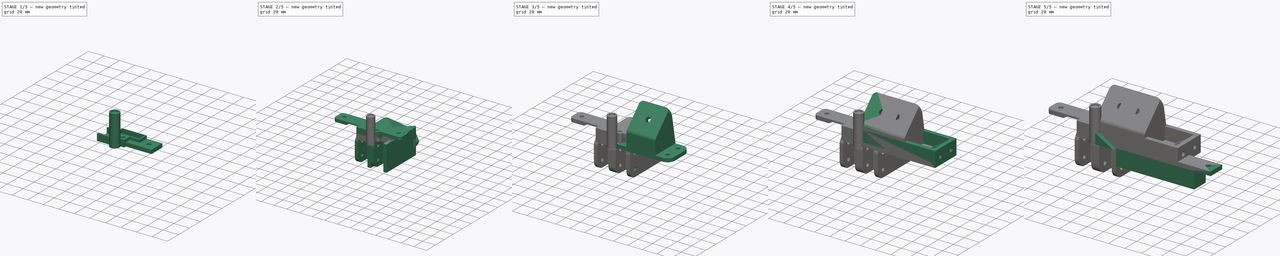
[diagram: build sequence overview — one tinted view per stage of 5, left to right]
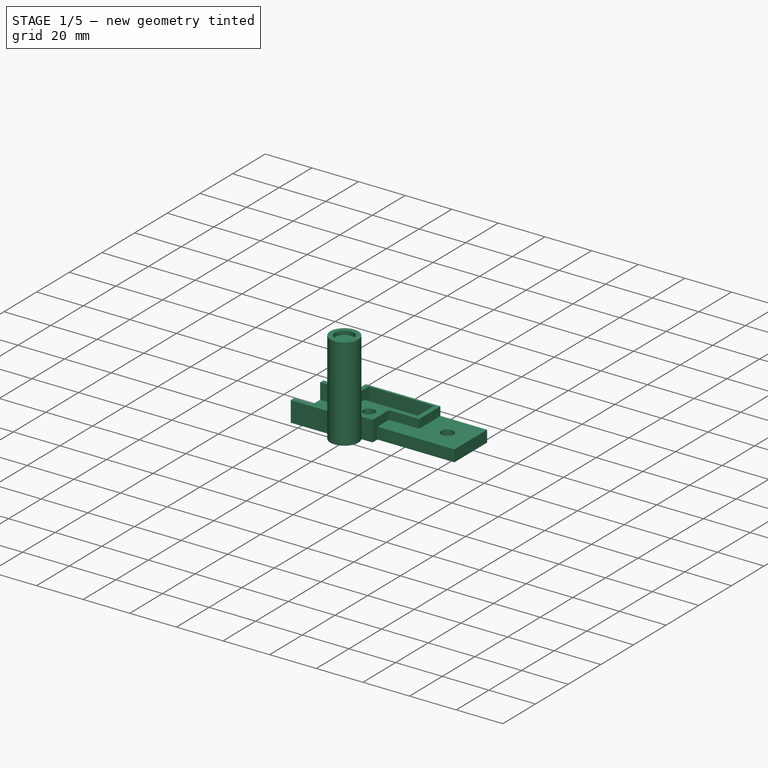
[diagram: stage 1 of 5 — iso view after this stage's code; geometry added in this stage tinted green]
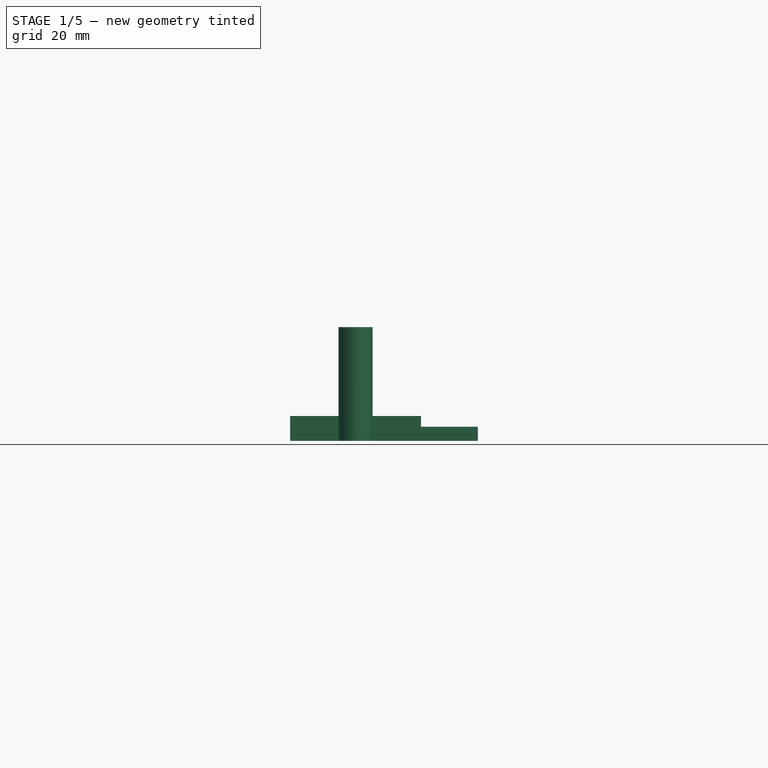
[diagram: stage 1 of 5 — front view after this stage's code; geometry added in this stage tinted green]
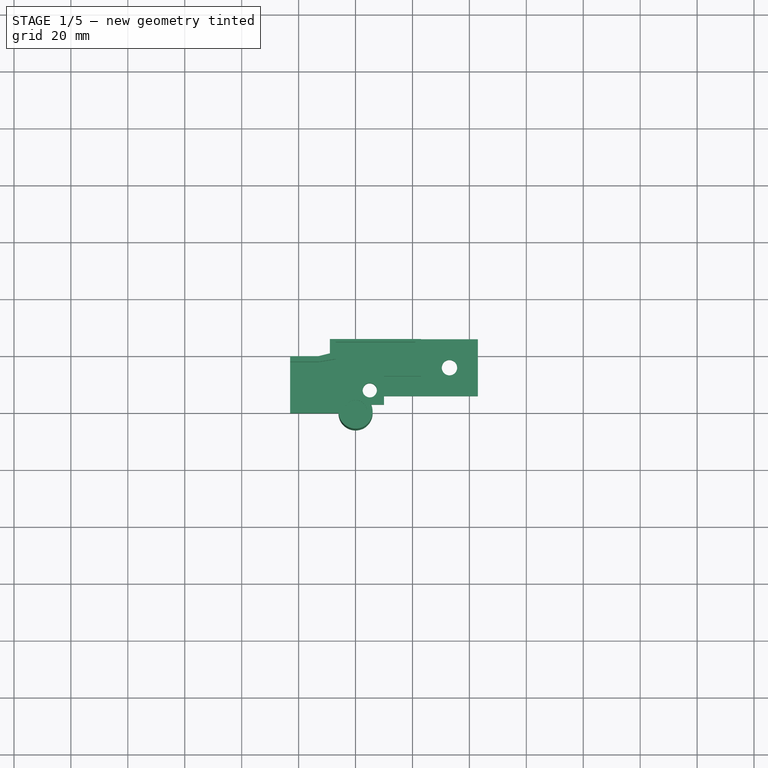
[diagram: stage 1 of 5 — top view after this stage's code; geometry added in this stage tinted green]
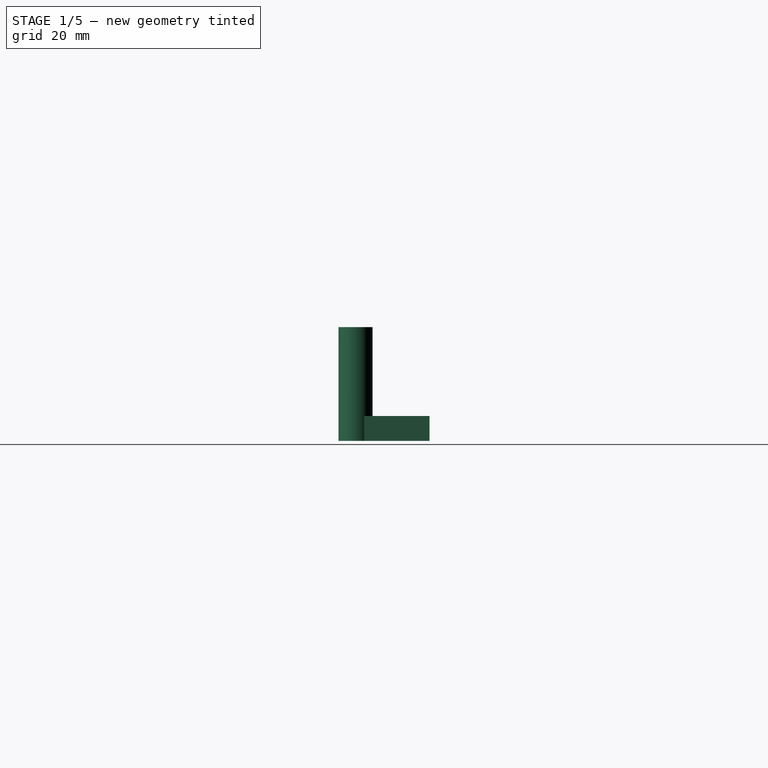
[diagram: stage 1 of 5 — right view after this stage's code; geometry added in this stage tinted green]
FCSTD DOCUMENT  (FreeCAD 0.20R29603 (Git))
Label: Brackets
License: All rights reserved
LicenseURL: http://en.wikipedia.org/wiki/All_rights_reserved
objects: Sketcher::SketchObject×74, PartDesign::Pad×49, PartDesign::Pocket×31, PartDesign::Body×16, PartDesign::Fillet×15, App::Part×9, Part::Cylinder×6, Part::Feature×5, Part::MultiFuse×2, Part::Mirroring×2, Part::Compound×1, Part::Cut×1
note: 297 computed .brp shape members not serialized (recipe doc carries the construction recipe); baked Part::Feature solids carry a one-line shape summary decoded from their .brp

FEATURE [Sketcher::SketchObject] Sketch135
  FullyConstrained = true
  MapMode = 5
  Support = -> [XY_Plane064]
  sketch-geometry (11):
    g0: LineSegment StartX=-23 StartY=18 StartZ=0 EndX=-23 EndY=0 EndZ=0
    g1: LineSegment StartX=-23 StartY=0 StartZ=0 EndX=0 EndY=0 EndZ=0
    g2: LineSegment StartX=0 StartY=0 StartZ=0 EndX=0 EndY=13 EndZ=0
    g3: LineSegment StartX=0 StartY=13 StartZ=0 EndX=23 EndY=13 EndZ=0
    g4: LineSegment StartX=23 StartY=13 StartZ=0 EndX=23 EndY=26 EndZ=0
    g5: LineSegment StartX=-9 StartY=26 StartZ=0 EndX=-9 EndY=21 EndZ=0
    g6: LineSegment StartX=-13 StartY=20 StartZ=0 EndX=-9 EndY=21 EndZ=0
    g7: LineSegment StartX=-7 StartY=26 StartZ=0 EndX=23 EndY=26 EndZ=0
    g8: LineSegment StartX=-23 StartY=18 StartZ=0 EndX=-23 EndY=20 EndZ=0
    g9: LineSegment StartX=-23 StartY=20 StartZ=0 EndX=-13 EndY=20 EndZ=0
    g10: LineSegment StartX=-9 StartY=26 StartZ=0 EndX=-7 EndY=26 EndZ=0
  constraints (32):
    c: Coincident(g0,g1)
    c: Horizontal(g1)
    c: Coincident(g1,g2)
    c: Vertical(g2)
    c: Coincident(g2,g3)
    c: Horizontal(g3)
    c: Coincident(g3,g4)
    c: Vertical(g4)
    c: Vertical(g5)
    c: Vertical(g0)
    c: Coincident(g6,g5)
    c: DistanceY(g1,g2) = 13
    c: DistanceY(g3,g4) = 13
    c: DistanceX(g2,g3) = 23
    c: DistanceX(g0,g1) = 23
    c: DistanceY(g5,g5) = 5
    c: DistanceX(g0,g6) = 10
    c: Coincident(g1,g-1)
    c: DistanceY(g0,g0) = 18
    c: Coincident(g7,g4)
    c: Horizontal(g7)
    c: DistanceX(g7,g4) = 30
    c: Horizontal(g5,g7)
    c: DistanceY(g6,g5) = 1
    c: Coincident(g8,g0)
    c: Coincident(g9,g8)
    c: Coincident(g9,g6)
    c: Horizontal(g9)
    c: Vertical(g8)
    c: Coincident(g10,g5)
    c: Coincident(g10,g7)
    c: DistanceX(g10,g10) = 2
FEATURE [PartDesign::Pad] Pad098
  Direction = (0,0,1)
  Length = 2
  Length2 = 10
  Profile = -> Sketch135
  ReferenceAxis = -> Sketch135 [N_Axis]
  Type = 0
FEATURE [Sketcher::SketchObject] Sketch136
  ExternalGeometry = -> [Pad098]
  FullyConstrained = true
  MapMode = 5
  Placement = pos=(0,0,2) rot=(0,0,1;0rad)
  Support = -> [Pad098]
  sketch-geometry (18):
    g0: LineSegment StartX=-23 StartY=0 StartZ=0 EndX=0 EndY=0 EndZ=0
    g1: LineSegment StartX=0 StartY=0 StartZ=0 EndX=0 EndY=13 EndZ=0
    g2: LineSegment StartX=0 StartY=13 StartZ=0 EndX=23 EndY=13 EndZ=0
    g3: LineSegment StartX=23 StartY=13 StartZ=0 EndX=23 EndY=26 EndZ=0
    g4: LineSegment StartX=23 StartY=26 StartZ=0 EndX=-9 EndY=26 EndZ=0
    g5: LineSegment StartX=-9 StartY=26 StartZ=0 EndX=-9 EndY=21 EndZ=0
    g6: LineSegment StartX=-9 StartY=21 StartZ=0 EndX=-13 EndY=20 EndZ=0
    g7: LineSegment StartX=-13 StartY=20 StartZ=0 EndX=-23 EndY=20 EndZ=0
    g8: LineSegment StartX=-23 StartY=18 StartZ=0 EndX=-23 EndY=20 EndZ=0
    g9: LineSegment StartX=-23 StartY=18 StartZ=0 EndX=-13 EndY=18 EndZ=0
    g10: LineSegment StartX=-13 StartY=18 StartZ=0 EndX=-7 EndY=19 EndZ=0
    g11: LineSegment StartX=-7 StartY=19 StartZ=0 EndX=-7 EndY=25 EndZ=0
    g12: LineSegment StartX=-7 StartY=25 StartZ=0 EndX=21 EndY=25 EndZ=0
    g13: LineSegment StartX=21 StartY=25 StartZ=0 EndX=21 EndY=15 EndZ=0
    g14: LineSegment StartX=21 StartY=15 StartZ=0 EndX=-2 EndY=15 EndZ=0
    g15: LineSegment StartX=-2 StartY=15 StartZ=0 EndX=-2 EndY=2 EndZ=0
    g16: LineSegment StartX=-2 StartY=2 StartZ=0 EndX=-23 EndY=2 EndZ=0
    g17: LineSegment StartX=-23 StartY=2 StartZ=0 EndX=-23 EndY=0 EndZ=0
  constraints (44):
    c: Coincident(g0,g-4)
    c: Coincident(g0,g-5)
    c: Coincident(g1,g0)
    c: Coincident(g1,g-6)
    c: Coincident(g2,g1)
    c: Coincident(g2,g-7)
    c: Coincident(g3,g2)
    c: Coincident(g3,g-8)
    c: Coincident(g4,g3)
    c: Coincident(g4,g-10)
    c: Coincident(g5,g4)
    c: Coincident(g5,g-11)
    c: Coincident(g6,g5)
    c: Coincident(g6,g-12)
    c: Coincident(g7,g6)
    c: Coincident(g7,g-12)
    c: Coincident(g8,g-3)
    c: Coincident(g8,g7)
    c: Coincident(g9,g8)
    c: Horizontal(g9)
    c: Coincident(g10,g9)
    c: Coincident(g11,g10)
    c: Vertical(g11)
    c: Coincident(g12,g11)
    c: Horizontal(g12)
    c: Coincident(g13,g12)
    c: Vertical(g13)
    c: Coincident(g14,g13)
    c: Horizontal(g14)
    c: Coincident(g15,g14)
    c: Vertical(g15)
    c: Coincident(g16,g15)
    c: Horizontal(g16)
    c: Coincident(g17,g16)
    c: Coincident(g17,g0)
    c: Vertical(g17)
    c: DistanceY(g17,g17) = 2
    c: DistanceX(g15,g0) = 2
    c: DistanceX(g13,g2) = 2
    c: DistanceY(g12,g3) = 1
    c: DistanceY(g11,g11) = 6
    c: Vertical(g9,g6)
    c: Vertical(g-9,g11)
    c: DistanceY(g2,g13) = 2
FEATURE [PartDesign::Pad] Pad099
  BaseFeature = -> Pad098
  Direction = (0,0,1)
  Length = 6.75
  Length2 = 10
  Profile = -> Sketch136
  ReferenceAxis = -> Sketch136 [N_Axis]
  Type = 0
FEATURE [Sketcher::SketchObject] Sketch137
  ExternalGeometry = -> [Pad099]
  FullyConstrained = true
  MapMode = 5
  Placement = pos=(0,0,2) rot=(0,0,1;0rad)
  Support = -> [Pad099]
  sketch-geometry (8):
    g0: LineSegment StartX=-7 StartY=25 StartZ=0 EndX=-5 EndY=25 EndZ=0
    g1: LineSegment StartX=-5 StartY=25 StartZ=0 EndX=-5 EndY=2 EndZ=0
    g2: LineSegment StartX=-5 StartY=2 StartZ=0 EndX=-7 EndY=2 EndZ=0
    g3: LineSegment StartX=-7 StartY=2 StartZ=0 EndX=-7 EndY=25 EndZ=0
    g4: LineSegment StartX=-4 StartY=18 StartZ=0 EndX=17 EndY=18 EndZ=0
    g5: LineSegment StartX=17 StartY=18 StartZ=0 EndX=17 EndY=16 EndZ=0
    g6: LineSegment StartX=17 StartY=16 StartZ=0 EndX=-4 EndY=16 EndZ=0
    g7: LineSegment StartX=-4 StartY=16 StartZ=0 EndX=-4 EndY=18 EndZ=0
  constraints (23):
    c: Coincident(g0,g1)
    c: Coincident(g1,g2)
    c: Coincident(g2,g3)
    c: Coincident(g3,g0)
    c: Horizontal(g0)
    c: Horizontal(g2)
    c: Vertical(g1)
    c: Vertical(g3)
    c: Coincident(g0,g-3)
    c: PointOnObject(g1,g-5)
    c: Coincident(g4,g5)
    c: Coincident(g5,g6)
    c: Coincident(g6,g7)
    c: Coincident(g7,g4)
    c: Horizontal(g4)
    c: Horizontal(g6)
    c: Vertical(g5)
    c: Vertical(g7)
    c: DistanceY(g5,g5) = 2
    c: DistanceX(g5,g-6) = 4
    c: DistanceX(g6,g-4) = 2
    c: DistanceY(g-6,g5) = 1
    c: DistanceX(g0,g0) = 2
FEATURE [PartDesign::Pocket] Pocket040
  BaseFeature = -> Pad099
  Direction = (0,0,-1)
  Length = 1
  Length2 = 5
  Profile = -> Sketch137
  ReferenceAxis = -> Sketch137 [N_Axis]
  Type = 0
FEATURE [Sketcher::SketchObject] Sketch138
  ExternalGeometry = -> [Pocket040]
  FullyConstrained = true
  MapMode = 5
  Placement = pos=(0,0,8.75) rot=(0,0,1;0rad)
  Support = -> [Pocket040]
  sketch-geometry (4):
    g0: LineSegment StartX=0 StartY=13 StartZ=0 EndX=10 EndY=13 EndZ=0
    g1: LineSegment StartX=10 StartY=13 StartZ=0 EndX=10 EndY=3 EndZ=0
    g2: LineSegment StartX=10 StartY=3 StartZ=0 EndX=0 EndY=3 EndZ=0
    g3: LineSegment StartX=0 StartY=3 StartZ=0 EndX=0 EndY=13 EndZ=0
  constraints (11):
    c: Coincident(g0,g1)
    c: Coincident(g1,g2)
    c: Coincident(g2,g3)
    c: Coincident(g3,g0)
    c: Horizontal(g0)
    c: Horizontal(g2)
    c: Vertical(g1)
    c: Vertical(g3)
    c: Coincident(g0,g-4)
    c: DistanceX(g2,g2) = 10
    c: Equal(g2,g1)
FEATURE [PartDesign::Pad] Pad100
  BaseFeature = -> Pocket040
  Direction = (0,0,1)
  Length = 5
  Length2 = 10
  Profile = -> Sketch138
  ReferenceAxis = -> Sketch138 [N_Axis]
  Reversed = true
  Type = 0
FEATURE [Sketcher::SketchObject] Sketch139
  ExternalGeometry = -> [Pad100]
  FullyConstrained = true
  MapMode = 5
  Placement = pos=(0,0,8.75) rot=(0,0,1;0rad)
  Support = -> [Pad100]
  sketch-geometry (3):
    g0: Circle CenterX=5 CenterY=8 CenterZ=0 NormalX=0 NormalY=0 NormalZ=1 AngleXU=0 Radius=2.5
    g1: LineSegment StartX=0 StartY=8 StartZ=0 EndX=2.5 EndY=8 EndZ=0
    g2: LineSegment StartX=5 StartY=10.5 StartZ=0 EndX=5 EndY=13 EndZ=0
  constraints (11):
    c: Diameter(g0) = 5
    c: PointOnObject(g1,g-3)
    c: PointOnObject(g1,g0)
    c: Horizontal(g1)
    c: PointOnObject(g2,g0)
    c: PointOnObject(g2,g-4)
    c: Vertical(g2)
    c: DistanceX(g1,g1) = 2.5
    c: Equal(g1,g2)
    c: Vertical(g2,g0)
    c: Horizontal(g1,g0)
FEATURE [PartDesign::Pocket] Pocket041
  BaseFeature = -> Pad100
  Direction = (0,0,-1)
  Length = 5
  Length2 = 5
  Profile = -> Sketch139
  ReferenceAxis = -> Sketch139 [N_Axis]
  Type = 2
FEATURE [Sketcher::SketchObject] Sketch140
  FullyConstrained = true
  MapMode = 5
  Support = -> [XY_Plane065]
  sketch-geometry (11):
    g0: LineSegment StartX=-23 StartY=18 StartZ=0 EndX=-23 EndY=0 EndZ=0
    g1: LineSegment StartX=-23 StartY=0 StartZ=0 EndX=0 EndY=0 EndZ=0
    g2: LineSegment StartX=0 StartY=0 StartZ=0 EndX=0 EndY=13 EndZ=0
    g3: LineSegment StartX=0 StartY=13 StartZ=0 EndX=23 EndY=13 EndZ=0
    g4: LineSegment StartX=23 StartY=13 StartZ=0 EndX=23 EndY=26 EndZ=0
    g5: LineSegment StartX=-9 StartY=26 StartZ=0 EndX=-9 EndY=21 EndZ=0
    g6: LineSegment StartX=-13 StartY=20 StartZ=0 EndX=-9 EndY=21 EndZ=0
    g7: LineSegment StartX=-7 StartY=26 StartZ=0 EndX=23 EndY=26 EndZ=0
    g8: LineSegment StartX=-23 StartY=18 StartZ=0 EndX=-23 EndY=20 EndZ=0
    g9: LineSegment StartX=-23 StartY=20 StartZ=0 EndX=-13 EndY=20 EndZ=0
    g10: LineSegment StartX=-9 StartY=26 StartZ=0 EndX=-7 EndY=26 EndZ=0
  constraints (32):
    c: Coincident(g0,g1)
    c: Horizontal(g1)
    c: Coincident(g1,g2)
    c: Vertical(g2)
    c: Coincident(g2,g3)
    c: Horizontal(g3)
    c: Coincident(g3,g4)
    c: Vertical(g4)
    c: Vertical(g5)
    c: Vertical(g0)
    c: Coincident(g6,g5)
    c: DistanceY(g1,g2) = 13
    c: DistanceY(g3,g4) = 13
    c: DistanceX(g2,g3) = 23
    c: DistanceX(g0,g1) = 23
    c: DistanceY(g5,g5) = 5
    c: DistanceX(g0,g6) = 10
    c: Coincident(g1,g-1)
    c: DistanceY(g0,g0) = 18
    c: Coincident(g7,g4)
    c: Horizontal(g7)
    c: DistanceX(g7,g4) = 30
    c: Horizontal(g5,g7)
    c: DistanceY(g6,g5) = 1
    c: Coincident(g8,g0)
    c: Coincident(g9,g8)
    c: Coincident(g9,g6)
    c: Horizontal(g9)
    c: Vertical(g8)
    c: Coincident(g10,g5)
    c: Coincident(g10,g7)
    c: DistanceX(g10,g10) = 2
FEATURE [PartDesign::Pad] Pad101
  Direction = (0,0,1)
  Length = 2
  Length2 = 10
  Profile = -> Sketch140
  ReferenceAxis = -> Sketch140 [N_Axis]
  Type = 0
FEATURE [Sketcher::SketchObject] Sketch141
  ExternalGeometry = -> [Pad101]
  FullyConstrained = true
  MapMode = 5
  Placement = pos=(0,0,2) rot=(0,0,1;0rad)
  Support = -> [Pad101]
  sketch-geometry (18):
    g0: LineSegment StartX=-23 StartY=0 StartZ=0 EndX=0 EndY=0 EndZ=0
    g1: LineSegment StartX=0 StartY=0 StartZ=0 EndX=0 EndY=13 EndZ=0
    g2: LineSegment StartX=0 StartY=13 StartZ=0 EndX=23 EndY=13 EndZ=0
    g3: LineSegment StartX=23 StartY=13 StartZ=0 EndX=23 EndY=26 EndZ=0
    g4: LineSegment StartX=23 StartY=26 StartZ=0 EndX=-9 EndY=26 EndZ=0
    g5: LineSegment StartX=-9 StartY=26 StartZ=0 EndX=-9 EndY=21 EndZ=0
    g6: LineSegment StartX=-9 StartY=21 StartZ=0 EndX=-13 EndY=20 EndZ=0
    g7: LineSegment StartX=-13 StartY=20 StartZ=0 EndX=-23 EndY=20 EndZ=0
    g8: LineSegment StartX=-23 StartY=18 StartZ=0 EndX=-23 EndY=20 EndZ=0
    g9: LineSegment StartX=-23 StartY=18 StartZ=0 EndX=-13 EndY=18 EndZ=0
    g10: LineSegment StartX=-13 StartY=18 StartZ=0 EndX=-7 EndY=19 EndZ=0
    g11: LineSegment StartX=-7 StartY=19 StartZ=0 EndX=-7 EndY=25 EndZ=0
    g12: LineSegment StartX=-7 StartY=25 StartZ=0 EndX=21 EndY=25 EndZ=0
    g13: LineSegment StartX=21 StartY=25 StartZ=0 EndX=21 EndY=15 EndZ=0
    g14: LineSegment StartX=21 StartY=15 StartZ=0 EndX=-2 EndY=15 EndZ=0
    g15: LineSegment StartX=-2 StartY=15 StartZ=0 EndX=-2 EndY=2 EndZ=0
    g16: LineSegment StartX=-2 StartY=2 StartZ=0 EndX=-23 EndY=2 EndZ=0
    g17: LineSegment StartX=-23 StartY=2 StartZ=0 EndX=-23 EndY=0 EndZ=0
  constraints (44):
    c: Coincident(g0,g-4)
    c: Coincident(g0,g-5)
    c: Coincident(g1,g0)
    c: Coincident(g1,g-6)
    c: Coincident(g2,g1)
    c: Coincident(g2,g-7)
    c: Coincident(g3,g2)
    c: Coincident(g3,g-8)
    c: Coincident(g4,g3)
    c: Coincident(g4,g-10)
    c: Coincident(g5,g4)
    c: Coincident(g5,g-11)
    c: Coincident(g6,g5)
    c: Coincident(g6,g-12)
    c: Coincident(g7,g6)
    c: Coincident(g7,g-12)
    c: Coincident(g8,g-3)
    c: Coincident(g8,g7)
    c: Coincident(g9,g8)
    c: Horizontal(g9)
    c: Coincident(g10,g9)
    c: Coincident(g11,g10)
    c: Vertical(g11)
    c: Coincident(g12,g11)
    c: Horizontal(g12)
    c: Coincident(g13,g12)
    c: Vertical(g13)
    c: Coincident(g14,g13)
    c: Horizontal(g14)
    c: Coincident(g15,g14)
    c: Vertical(g15)
    c: Coincident(g16,g15)
    c: Horizontal(g16)
    c: Coincident(g17,g16)
    c: Coincident(g17,g0)
    c: Vertical(g17)
    c: DistanceY(g17,g17) = 2
    c: DistanceX(g15,g0) = 2
    c: DistanceX(g13,g2) = 2
    c: DistanceY(g12,g3) = 1
    c: DistanceY(g11,g11) = 6
    c: Vertical(g9,g6)
    c: Vertical(g-9,g11)
    c: DistanceY(g2,g13) = 2
FEATURE [PartDesign::Pad] Pad102
  BaseFeature = -> Pad101
  Direction = (0,0,1)
  Length = 6.75
  Length2 = 10
  Profile = -> Sketch141
  ReferenceAxis = -> Sketch141 [N_Axis]
  Type = 0
FEATURE [Sketcher::SketchObject] Sketch142
  ExternalGeometry = -> [Pad102]
  FullyConstrained = true
  MapMode = 5
  Placement = pos=(0,0,2) rot=(0,0,1;0rad)
  Support = -> [Pad102]
  sketch-geometry (8):
    g0: LineSegment StartX=-7 StartY=25 StartZ=0 EndX=-5 EndY=25 EndZ=0
    g1: LineSegment StartX=-5 StartY=25 StartZ=0 EndX=-5 EndY=2 EndZ=0
    g2: LineSegment StartX=-5 StartY=2 StartZ=0 EndX=-7 EndY=2 EndZ=0
    g3: LineSegment StartX=-7 StartY=2 StartZ=0 EndX=-7 EndY=25 EndZ=0
    g4: LineSegment StartX=-4 StartY=18 StartZ=0 EndX=17 EndY=18 EndZ=0
    g5: LineSegment StartX=17 StartY=18 StartZ=0 EndX=17 EndY=16 EndZ=0
    g6: LineSegment StartX=17 StartY=16 StartZ=0 EndX=-4 EndY=16 EndZ=0
    g7: LineSegment StartX=-4 StartY=16 StartZ=0 EndX=-4 EndY=18 EndZ=0
  constraints (23):
    c: Coincident(g0,g1)
    c: Coincident(g1,g2)
    c: Coincident(g2,g3)
    c: Coincident(g3,g0)
    c: Horizontal(g0)
    c: Horizontal(g2)
    c: Vertical(g1)
    c: Vertical(g3)
    c: Coincident(g0,g-3)
    c: PointOnObject(g1,g-5)
    c: Coincident(g4,g5)
    c: Coincident(g5,g6)
    c: Coincident(g6,g7)
    c: Coincident(g7,g4)
    c: Horizontal(g4)
    c: Horizontal(g6)
    c: Vertical(g5)
    c: Vertical(g7)
    c: DistanceY(g5,g5) = 2
    c: DistanceX(g5,g-6) = 4
    c: DistanceX(g6,g-4) = 2
    c: DistanceY(g-6,g5) = 1
    c: DistanceX(g0,g0) = 2
FEATURE [PartDesign::Pocket] Pocket042
  BaseFeature = -> Pad102
  Direction = (0,0,-1)
  Length = 1
  Length2 = 5
  Profile = -> Sketch142
  ReferenceAxis = -> Sketch142 [N_Axis]
  Type = 0
FEATURE [Sketcher::SketchObject] Sketch143
  ExternalGeometry = -> [Pocket042]
  FullyConstrained = true
  MapMode = 5
  Placement = pos=(0,0,8.75) rot=(0,0,1;0rad)
  Support = -> [Pocket042]
  sketch-geometry (4):
    g0: LineSegment StartX=0 StartY=13 StartZ=0 EndX=10 EndY=13 EndZ=0
    g1: LineSegment StartX=10 StartY=13 StartZ=0 EndX=10 EndY=3 EndZ=0
    g2: LineSegment StartX=10 StartY=3 StartZ=0 EndX=0 EndY=3 EndZ=0
    g3: LineSegment StartX=0 StartY=3 StartZ=0 EndX=0 EndY=13 EndZ=0
  constraints (11):
    c: Coincident(g0,g1)
    c: Coincident(g1,g2)
    c: Coincident(g2,g3)
    c: Coincident(g3,g0)
    c: Horizontal(g0)
    c: Horizontal(g2)
    c: Vertical(g1)
    c: Vertical(g3)
    c: Coincident(g0,g-4)
    c: DistanceX(g2,g2) = 10
    c: Equal(g2,g1)
FEATURE [PartDesign::Pad] Pad103
  BaseFeature = -> Pocket042
  Direction = (0,0,1)
  Length = 5
  Length2 = 10
  Profile = -> Sketch143
  ReferenceAxis = -> Sketch143 [N_Axis]
  Reversed = true
  Type = 0
FEATURE [Sketcher::SketchObject] Sketch144
  ExternalGeometry = -> [Pad103]
  FullyConstrained = true
  MapMode = 5
  Placement = pos=(0,0,8.75) rot=(0,0,1;0rad)
  Support = -> [Pad103]
  sketch-geometry (3):
    g0: Circle CenterX=5 CenterY=8 CenterZ=0 NormalX=0 NormalY=0 NormalZ=1 AngleXU=0 Radius=2.5
    g1: LineSegment StartX=0 StartY=8 StartZ=0 EndX=2.5 EndY=8 EndZ=0
    g2: LineSegment StartX=5 StartY=10.5 StartZ=0 EndX=5 EndY=13 EndZ=0
  constraints (11):
    c: Diameter(g0) = 5
    c: PointOnObject(g1,g-3)
    c: PointOnObject(g1,g0)
    c: Horizontal(g1)
    c: PointOnObject(g2,g0)
    c: PointOnObject(g2,g-4)
    c: Vertical(g2)
    c: DistanceX(g1,g1) = 2.5
    c: Equal(g1,g2)
    c: Vertical(g2,g0)
    c: Horizontal(g1,g0)
FEATURE [PartDesign::Pocket] Pocket043
  BaseFeature = -> Pad103
  Direction = (0,0,-1)
  Length = 5
  Length2 = 5
  Profile = -> Sketch144
  ReferenceAxis = -> Sketch144 [N_Axis]
  Type = 2
FEATURE [Sketcher::SketchObject] Sketch145
  ExternalGeometry = -> [Pocket043]
  FullyConstrained = true
  MapMode = 5
  Placement = pos=(0,0,0) rot=(1,0,0;3.14159rad)
  Support = -> [Pocket043]
  sketch-geometry (4):
    g0: LineSegment StartX=23 StartY=-26 StartZ=0 EndX=43 EndY=-26 EndZ=0
    g1: LineSegment StartX=43 StartY=-26 StartZ=0 EndX=43 EndY=-6 EndZ=0
    g2: LineSegment StartX=43 StartY=-6 StartZ=0 EndX=23 EndY=-6 EndZ=0
    g3: LineSegment StartX=23 StartY=-6 StartZ=0 EndX=23 EndY=-26 EndZ=0
  constraints (11):
    c: Coincident(g0,g1)
    c: Coincident(g1,g2)
    c: Coincident(g2,g3)
    c: Coincident(g3,g0)
    c: Horizontal(g0)
    c: Horizontal(g2)
    c: Vertical(g1)
    c: Vertical(g3)
    c: Coincident(g0,g-3)
    c: DistanceY(g1,g1) = 20
    c: DistanceX(g0,g0) = 20
FEATURE [PartDesign::Pad] Pad104
  BaseFeature = -> Pocket043
  Direction = (0,0,-1)
  Length = 5
  Length2 = 10
  Profile = -> Sketch145
  ReferenceAxis = -> Sketch145 [N_Axis]
  Reversed = true
  Type = 0
FEATURE [Sketcher::SketchObject] Sketch146
  ExternalGeometry = -> [Pad104]
  FullyConstrained = true
  MapMode = 5
  Placement = pos=(0,0,0) rot=(1,0,0;3.14159rad)
  Support = -> [Pad104]
  sketch-geometry (1):
    g0: Circle CenterX=33 CenterY=-16 CenterZ=0 NormalX=0 NormalY=0 NormalZ=1 AngleXU=0 Radius=2.7
  constraints (3):
    c: Diameter(g0) = 5.4
    c: DistanceX(g-3,g0) = 10
    c: DistanceY(g-3,g0) = 10
FEATURE [PartDesign::Pocket] Pocket044
  BaseFeature = -> Pad104
  Direction = (0,0,1)
  Length = 5
  Length2 = 5
  Profile = -> Sketch146
  ReferenceAxis = -> Sketch146 [N_Axis]
  Type = 1
FEATURE [PartDesign::Pad] Pad105
  BaseFeature = -> Pocket044
  Direction = (-1,0,0)
  Length = 10
  Length2 = 10
  Profile = -> Pocket044 [Face25]
  Type = 2
FEATURE [PartDesign::Pad] Pad106
  BaseFeature = -> Pad105
  Direction = (0,0,-1)
  Length = 3.75
  Length2 = 10
  Profile = -> Pad105 [Face46]
  Type = 0
FEATURE [PartDesign::Pocket] Pocket045
  BaseFeature = -> Pad106
  Direction = (0,0,-1)
  Length = 5
  Length2 = 5
  Profile = -> Pad106 [Face53]
  Type = 1
FEATURE [PartDesign::Fillet] Fillet024
  Base = -> Pocket041 [Edge108]
  BaseFeature = -> Pocket041
  Radius = 2.99
  SupportTransform = false
  UseAllEdges = false
FEATURE [PartDesign::Fillet] Fillet025
  Base = -> Fillet024 [Edge77,Edge35,Edge40,Edge80,Edge39,Edge79,Edge83,Edge43,Edge93,Edge52,Edge87,Edge45]
  BaseFeature = -> Fillet024
  Radius = 1
  SupportTransform = false
  UseAllEdges = false
FEATURE [PartDesign::Fillet] Fillet026
  Base = -> Fillet025 [Edge37,Edge98]
  BaseFeature = -> Fillet025
  Radius = 3
  SupportTransform = false
  UseAllEdges = false
FEATURE [PartDesign::Body] Body049  label="Part 2"
  Group = -> [Sketch135,Pad098,Sketch136,Pad099,Sketch137,Pocket040,Sketch138,Pad100,Sketch139,Pocket041,Fillet024,Fillet025,Fillet026]
  Origin = -> Origin064
  Tip = -> Fillet026
FEATURE [App::Part] Part014  label="Wheel Sensor"
  Group = -> [Body049,Body050,Part__Mirroring003]
  Origin = -> Origin063
FEATURE [Sketcher::SketchObject] Sketch151
  FullyConstrained = true
  MapMode = 5
  Support = -> [XY_Plane068]
  sketch-geometry (1):
    g0: Circle CenterX=0 CenterY=0 CenterZ=0 NormalX=0 NormalY=0 NormalZ=1 AngleXU=0 Radius=6
  constraints (2):
    c: Coincident(g0,g-1)
    c: Radius(g0) = 6
FEATURE [PartDesign::Pad] Pad111
  Direction = (1,1,1)
  Length = 40
  Length2 = 100
  Profile = -> Sketch151
  Type = 0
FEATURE [Sketcher::SketchObject] Sketch152
  FullyConstrained = true
  MapMode = 5
  Placement = pos=(0,0,0) rot=(1,0,0;3.14159rad)
  Support = -> [Pad111]
  sketch-geometry (1):
    g0: Circle CenterX=0 CenterY=0 CenterZ=0 NormalX=0 NormalY=0 NormalZ=1 AngleXU=0 Radius=3.65
  constraints (2):
    c: Coincident(g0,g-1)
    c: Radius(g0) = 3.65
FEATURE [PartDesign::Pocket] Pocket
  BaseFeature = -> Pad111
  Direction = (1,1,1)
  Length = 10
  Length2 = 100
  Profile = -> Sketch152
  Type = 0
FEATURE [Sketcher::SketchObject] Sketch153
  FullyConstrained = true
  MapMode = 5
  Placement = pos=(0,0,40) rot=(0,0,1;0rad)
  Support = -> [Pocket]
  sketch-geometry (1):
    g0: Circle CenterX=0 CenterY=0 CenterZ=0 NormalX=0 NormalY=0 NormalZ=1 AngleXU=0 Radius=4
  constraints (2):
    c: Coincident(g0,g-1)
    c: Radius(g0) = 4
FEATURE [PartDesign::Pocket] Pocket001
  BaseFeature = -> Pocket
  Direction = (1,1,1)
  Length = 1.7
  Length2 = 100
  Profile = -> Sketch153
  Type = 0
FEATURE [PartDesign::Body] Body051
  Group = -> [Sketch151,Pad111,Sketch152,Pocket,Sketch153,Pocket001]
  Origin = -> Origin068
  Tip = -> Pocket001
FEATURE [App::Part] Part016  label="Wheel Magnet Holder"
  Group = -> [Body051]
  Origin = -> Origin067
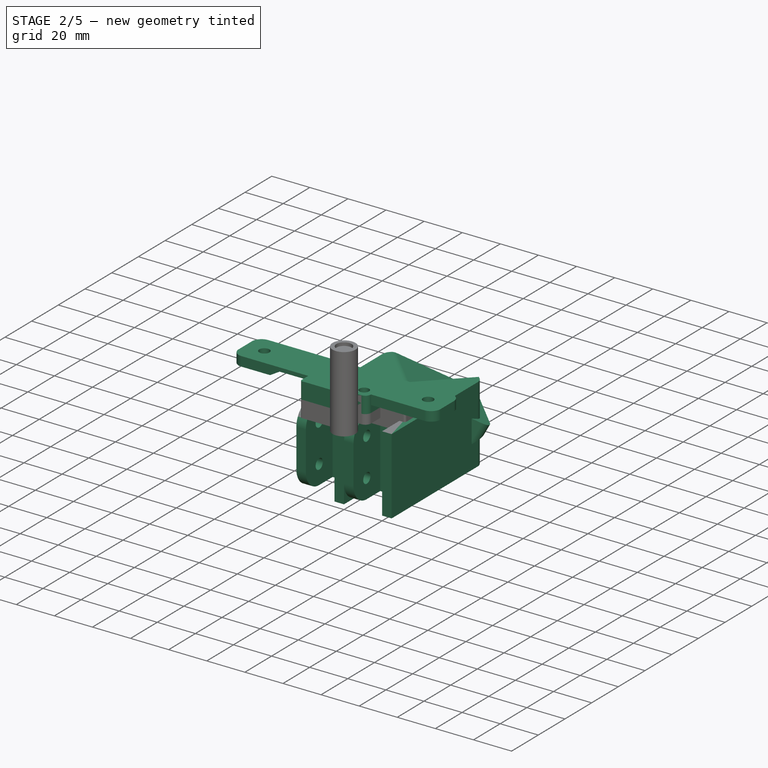
[diagram: stage 2 of 5 — iso view after this stage's code; geometry added in this stage tinted green]
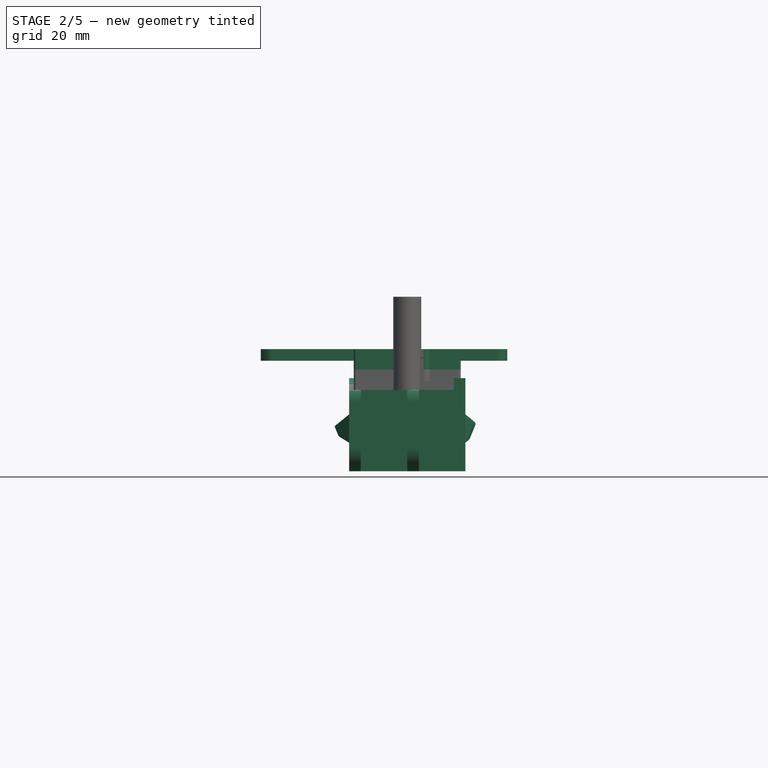
[diagram: stage 2 of 5 — front view after this stage's code; geometry added in this stage tinted green]
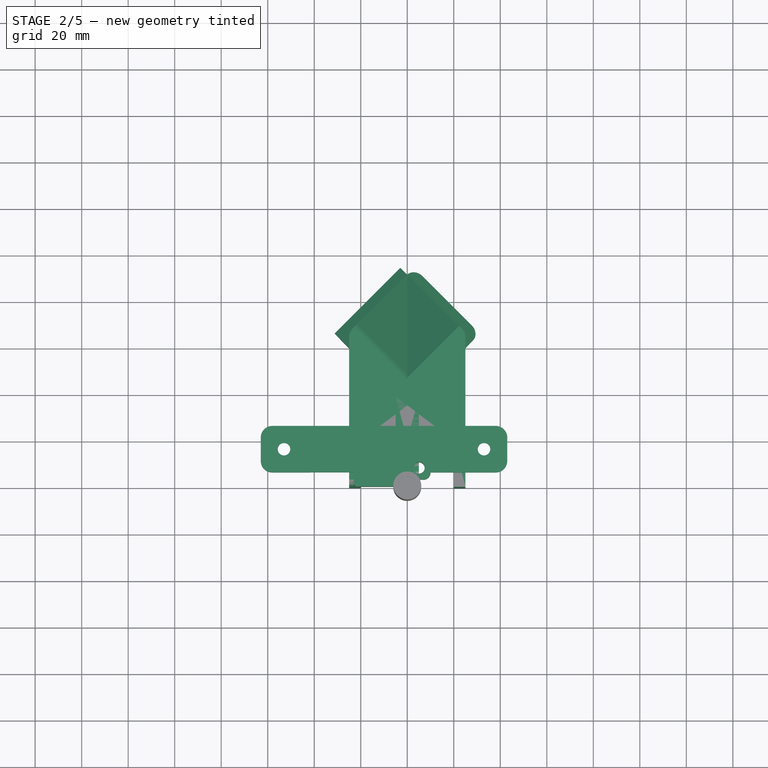
[diagram: stage 2 of 5 — top view after this stage's code; geometry added in this stage tinted green]
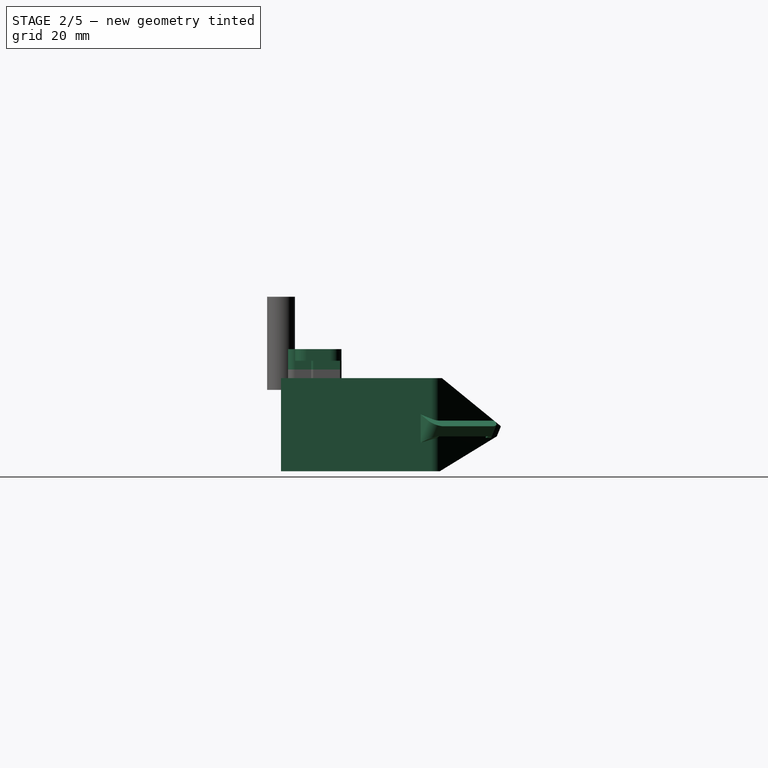
[diagram: stage 2 of 5 — right view after this stage's code; geometry added in this stage tinted green]
FEATURE [Part::Feature] Fusion007_solid  label="Center Camera Mount Boolean (Solid)"
  shape: bbox 80 x 40 x 53.28 mm, 35 faces (baked)
FEATURE [Sketcher::SketchObject] Sketch119
  FullyConstrained = true
  MapMode = 5
  Support = -> [XY_Plane062]
  sketch-geometry (9):
    g0: LineSegment StartX=0 StartY=0 StartZ=0 EndX=0 EndY=20 EndZ=0
    g1: LineSegment StartX=0 StartY=20 StartZ=0 EndX=20 EndY=20 EndZ=0
    g2: LineSegment StartX=20 StartY=20 StartZ=0 EndX=20 EndY=0 EndZ=0
    g3: LineSegment StartX=20 StartY=0 StartZ=0 EndX=25 EndY=0 EndZ=0
    g4: LineSegment StartX=0 StartY=0 StartZ=0 EndX=-5 EndY=0 EndZ=0
    g5: LineSegment StartX=-5 StartY=0 StartZ=0 EndX=-5 EndY=40 EndZ=0
    g6: LineSegment StartX=-5 StartY=40 StartZ=0 EndX=23.2843 EndY=68.2843 EndZ=0
    g7: LineSegment StartX=25 StartY=0 StartZ=0 EndX=25 EndY=66.5685 EndZ=0
    g8: LineSegment StartX=25 StartY=66.5685 StartZ=0 EndX=23.2843 EndY=68.2843 EndZ=0
  constraints (26):
    c: Coincident(g0,g-1)
    c: PointOnObject(g0,g-2)
    c: Coincident(g1,g0)
    c: Horizontal(g1)
    c: DistanceY(g0,g0) = 20
    c: Equal(g0,g1)
    c: Coincident(g2,g1)
    c: PointOnObject(g2,g-1)
    c: Vertical(g2)
    c: Coincident(g3,g2)
    c: PointOnObject(g3,g-1)
    c: Coincident(g4,g0)
    c: PointOnObject(g4,g-1)
    c: DistanceX(g4,g4) = 5
    c: Equal(g4,g3)
    c: Coincident(g5,g4)
    c: Vertical(g5)
    c: Coincident(g6,g5)
    c: Angle(g-1,g6) = 0.785398
    c: Coincident(g7,g3)
    c: Vertical(g7)
    c: Coincident(g8,g7)
    c: Perpendicular(g8,g6)
    c: Coincident(g6,g8)
    c: Distance(g6) = 40
    c: DistanceY(g5,g5) = 40
FEATURE [PartDesign::Pad] Pad090
  Direction = (0,0,1)
  Length = 5
  Length2 = 10
  Profile = -> Sketch119
  ReferenceAxis = -> Sketch119 [N_Axis]
  Type = 0
FEATURE [Sketcher::SketchObject] Sketch120
  ExternalGeometry = -> [Pad090]
  FullyConstrained = true
  MapMode = 5
  Placement = pos=(45.7843,45.7843,0) rot=(0.281085,0.678598,0.678598;2.59356rad)
  Support = -> [Pad090]
  sketch-geometry (4):
    g0: LineSegment StartX=31.8198 StartY=2.7e-15 StartZ=0 EndX=31.8198 EndY=5 EndZ=0
    g1: LineSegment StartX=31.8198 StartY=5 StartZ=0 EndX=33.1596 EndY=5 EndZ=0
    g2: LineSegment StartX=33.1596 StartY=5 StartZ=0 EndX=34.3198 EndY=4.33013 EndZ=0
    g3: LineSegment StartX=34.3198 StartY=4.33013 StartZ=0 EndX=31.8198 EndY=2.7e-15 EndZ=0
  constraints (10):
    c: Coincident(g0,g-3)
    c: Coincident(g0,g-3)
    c: Coincident(g1,g0)
    c: Horizontal(g1)
    c: Coincident(g2,g1)
    c: Coincident(g3,g2)
    c: Coincident(g3,g0)
    c: Perpendicular(g3,g2)
    c: Angle(g3,g0) = 0.523599
    c: Distance(g3) = 5
FEATURE [PartDesign::Pad] Pad091
  BaseFeature = -> Pad090
  Direction = (0.707107,0.707107,2e-16)
  Length = 40
  Length2 = 10
  Profile = -> Sketch120
  ReferenceAxis = -> Sketch120 [N_Axis]
  Reversed = true
  Type = 0
FEATURE [PartDesign::Pad] Pad092
  BaseFeature = -> Pad091
  Direction = (-0.612372,0.612372,-0.5)
  Length = 40
  Length2 = 10
  Profile = -> Pad091 [Face11]
  Type = 0
FEATURE [Sketcher::SketchObject] Sketch125
  FullyConstrained = false
  MapMode = 5
  Placement = pos=(0,0,0) rot=(1,0,0;3.14159rad)
  Support = -> [Pad092]
  sketch-geometry (8):
    g0: LineSegment StartX=-5 StartY=0 StartZ=0 EndX=-5 EndY=-25 EndZ=0
    g1: LineSegment StartX=-5 StartY=-25 StartZ=0 EndX=25 EndY=-25 EndZ=0
    g2: LineSegment StartX=25 StartY=-25 StartZ=0 EndX=25 EndY=0 EndZ=0
    g3: LineSegment StartX=20 StartY=0 StartZ=0 EndX=25 EndY=0 EndZ=0
    g4: LineSegment StartX=0 StartY=0 StartZ=0 EndX=-5 EndY=0 EndZ=0
    g5: LineSegment StartX=0 StartY=0 StartZ=0 EndX=0 EndY=-20 EndZ=0
    g6: LineSegment StartX=0 StartY=-20 StartZ=0 EndX=20 EndY=-20 EndZ=0
    g7: LineSegment StartX=20 StartY=-20 StartZ=0 EndX=20 EndY=0 EndZ=0
  constraints (10):
    c: Coincident(g1,g0)
    c: Horizontal(g1)
    c: Coincident(g2,g1)
    c: Coincident(g3,g2)
    c: Coincident(g4,g0)
    c: Coincident(g5,g4)
    c: Coincident(g6,g5)
    c: Coincident(g7,g6)
    c: Coincident(g7,g3)
    c: DistanceY(g0,g0) = 25
FEATURE [PartDesign::Pad] Pad093
  BaseFeature = -> Pad092
  Direction = (0,0,-1)
  Length = 35
  Length2 = 10
  Profile = -> Sketch125
  ReferenceAxis = -> Sketch125 [N_Axis]
  Type = 0
FEATURE [Sketcher::SketchObject] Sketch126
  ExternalGeometry = -> [Pad093]
  FullyConstrained = true
  MapMode = 5
  Placement = pos=(0,0,-35) rot=(1,0,0;3.14159rad)
  Support = -> [Pad093]
  sketch-geometry (9):
    g0: LineSegment StartX=25 StartY=-25 StartZ=0 EndX=25 EndY=-66.5685 EndZ=0
    g1: LineSegment StartX=25 StartY=-25 StartZ=0 EndX=20 EndY=-25 EndZ=0
    g2: LineSegment StartX=20 StartY=-25 StartZ=0 EndX=20 EndY=-64.4975 EndZ=0
    g3: LineSegment StartX=20 StartY=-64.4975 StartZ=0 EndX=25 EndY=-66.5685 EndZ=0
    g4: LineSegment StartX=20 StartY=-64.4975 StartZ=0 EndX=23.5355 EndY=-68.033 EndZ=0
    g5: LineSegment StartX=20 StartY=-64.4975 StartZ=0 EndX=25 EndY=-64.4975 EndZ=0
    g6: LineSegment StartX=25 StartY=-66.5685 StartZ=0 EndX=23.2843 EndY=-68.2843 EndZ=0
    g7: LineSegment StartX=20 StartY=-64.4975 StartZ=0 EndX=19.7487 EndY=-64.7487 EndZ=0
    g8: LineSegment StartX=19.7487 StartY=-64.7487 StartZ=0 EndX=23.2843 EndY=-68.2843 EndZ=0
  constraints (23):
    c: Coincident(g0,g-6)
    c: Coincident(g0,g-6)
    c: Coincident(g1,g0)
    c: PointOnObject(g1,g-4)
    c: DistanceX(g1,g1) = 5
    c: Coincident(g2,g1)
    c: Vertical(g2)
    c: Coincident(g3,g2)
    c: Coincident(g3,g0)
    c: Coincident(g4,g2)
    c: Coincident(g5,g2)
    c: PointOnObject(g5,g0)
    c: Horizontal(g5)
    c: Equal(g4,g5)
    c: Coincident(g6,g0)
    c: Coincident(g6,g-5)
    c: PointOnObject(g4,g6)
    c: Coincident(g7,g2)
    c: PointOnObject(g7,g-7)
    c: Coincident(g8,g7)
    c: Coincident(g8,g6)
    c: Distance(g8) = 5
    c: Perpendicular(g6,g4)
FEATURE [PartDesign::Pad] Pad094
  BaseFeature = -> Pad093
  Direction = (0,0,-1)
  Length = 10
  Length2 = 10
  Profile = -> Sketch126
  ReferenceAxis = -> Sketch126 [N_Axis]
  Reversed = true
  Type = 2
FEATURE [Sketcher::SketchObject] Sketch127
  ExternalGeometry = -> [Pad094]
  FullyConstrained = true
  MapMode = 5
  Placement = pos=(45.7843,45.7843,2.53e-14) rot=(0.281085,0.678598,0.678598;2.59356rad)
  Support = -> [Pad094]
  sketch-geometry (3):
    g0: LineSegment StartX=31.8198 StartY=3.6e-15 StartZ=0 EndX=31.8198 EndY=-35 EndZ=0
    g1: LineSegment StartX=31.8198 StartY=-35 StartZ=0 EndX=66.4608 EndY=-20 EndZ=0
    g2: LineSegment StartX=66.4608 StartY=-20 StartZ=0 EndX=31.8198 EndY=3.6e-15 EndZ=0
  constraints (6):
    c: Coincident(g0,g-4)
    c: Coincident(g0,g-3)
    c: Coincident(g1,g0)
    c: Coincident(g1,g-4)
    c: Coincident(g2,g1)
    c: Coincident(g2,g0)
FEATURE [PartDesign::Pad] Pad095
  BaseFeature = -> Pad094
  Direction = (0.707107,0.707107,4e-16)
  Length = 5
  Length2 = 10
  Profile = -> Sketch127
  ReferenceAxis = -> Sketch127 [N_Axis]
  Reversed = true
  Type = 0
FEATURE [Sketcher::SketchObject] Sketch128
  ExternalGeometry = -> [Pad095]
  FullyConstrained = true
  MapMode = 5
  Placement = pos=(0,0,0) rot=(1,0,0;3.14159rad)
  Support = -> [Pad095]
  sketch-geometry (4):
    g0: LineSegment StartX=-5 StartY=-25 StartZ=0 EndX=-5 EndY=-40 EndZ=0
    g1: LineSegment StartX=-5 StartY=-40 StartZ=0 EndX=0 EndY=-45 EndZ=0
    g2: LineSegment StartX=-5 StartY=-25 StartZ=0 EndX=0 EndY=-25 EndZ=0
    g3: LineSegment StartX=2e-16 StartY=-25 StartZ=0 EndX=2e-16 EndY=-45 EndZ=0
  constraints (10):
    c: Coincident(g0,g-5)
    c: Coincident(g0,g-4)
    c: Coincident(g1,g0)
    c: PointOnObject(g1,g-3)
    c: Coincident(g2,g0)
    c: PointOnObject(g2,g-5)
    c: Coincident(g3,g2)
    c: Coincident(g3,g1)
    c: Vertical(g3)
    c: DistanceX(g2,g2) = 5
FEATURE [PartDesign::Pad] Pad096
  BaseFeature = -> Pad095
  Direction = (0,0,-1)
  Length = 35
  Length2 = 10
  Profile = -> Sketch128
  ReferenceAxis = -> Sketch128 [N_Axis]
  Type = 0
FEATURE [Sketcher::SketchObject] Sketch129
  ExternalGeometry = -> [Pad096]
  FullyConstrained = true
  MapMode = 5
  Placement = pos=(17.5,17.5,9.7e-15) rot=(0.862856,-0.357407,-0.357407;1.71777rad)
  Support = -> [Pad096]
  sketch-geometry (3):
    g0: LineSegment StartX=-66.4608 StartY=-20 StartZ=0 EndX=-31.8198 EndY=3.6e-15 EndZ=0
    g1: LineSegment StartX=-31.8198 StartY=3.6e-15 StartZ=0 EndX=-31.8198 EndY=-35 EndZ=0
    g2: LineSegment StartX=-31.8198 StartY=-35 StartZ=0 EndX=-66.4608 EndY=-20 EndZ=0
  constraints (6):
    c: Coincident(g0,g-3)
    c: Coincident(g0,g-4)
    c: Coincident(g1,g0)
    c: Coincident(g1,g-4)
    c: Coincident(g2,g1)
    c: Coincident(g2,g0)
FEATURE [PartDesign::Pad] Pad097
  BaseFeature = -> Pad096
  Direction = (-0.707107,-0.707107,-5e-16)
  Length = 5
  Length2 = 10
  Profile = -> Sketch129
  ReferenceAxis = -> Sketch129 [N_Axis]
  Reversed = true
  Type = 0
FEATURE [PartDesign::Pocket] Pocket033
  BaseFeature = -> Pad097
  Direction = (0.707107,-0.707107,0)
  Length = 3
  Length2 = 5
  Profile = -> Pad097 [Face31]
  Type = 0
FEATURE [Sketcher::SketchObject] Sketch124
  FullyConstrained = false
  MapMode = 5
  Placement = pos=(-7.39277,7.39277,18.1085) rot=(-0.72553,-0.675307,0.132537;0.52837rad)
  Support = -> [Pocket033]
  sketch-geometry (4):
    g0: Circle CenterX=2.69366 CenterY=65.2445 CenterZ=0 NormalX=0 NormalY=0 NormalZ=1 AngleXU=0 Radius=3.35
    g1: LineSegment StartX=0.668153 StartY=37.0328 StartZ=0 EndX=2.69366 EndY=65.2445 EndZ=0
    g2: LineSegment StartX=2.69366 StartY=65.2445 StartZ=0 EndX=30.9053 EndY=63.219 EndZ=0
    g3: LineSegment StartX=2.69366 StartY=65.2445 StartZ=0 EndX=-25.518 EndY=67.27 EndZ=0
  constraints (6):
    c: Diameter(g0) = 6.7
    c: Coincident(g1,g0)
    c: Coincident(g2,g0)
    c: Coincident(g3,g0)
    c: Equal(g2,g1)
    c: Equal(g1,g3)
FEATURE [PartDesign::Pocket] Pocket034
  BaseFeature = -> Pocket033
  Direction = (0.353553,-0.353553,-0.866025)
  Length = 5
  Length2 = 5
  Profile = -> Sketch124
  ReferenceAxis = -> Sketch124 [N_Axis]
  Type = 2
FEATURE [PartDesign::Fillet] Fillet018
  Base = -> Pocket034 [Edge49,Edge20]
  BaseFeature = -> Pocket034
  Radius = 3
  SupportTransform = false
  UseAllEdges = false
FEATURE [PartDesign::Fillet] Fillet019
  Base = -> Fillet018 [Edge46,Edge18]
  BaseFeature = -> Fillet018
  Radius = 5
  SupportTransform = false
  UseAllEdges = false
FEATURE [PartDesign::Body] Body048
  Group = -> [Sketch119,Pad090,Sketch120,Pad091,Pad092,Sketch124,Sketch125,Pad093,Sketch126,Pad094,Sketch127,Pad095,Sketch128,Pad096,Sketch129,Pad097,Pocket033,Pocket034,Fillet018,Fillet019,Fillet020,Sketch130,Pocket035,Sketch131,Pocket036,Sketch132,Pocket037,Sketch133,Pocket038,Sketch134,Pocket039]
  Origin = -> Origin062
  Tip = -> Pocket039
FEATURE [App::Part] Part013  label="Side Camera Mount"
  Group = -> [Body048]
  Origin = -> Origin061
FEATURE [Part::Feature] Part013_solid  label="Right Camera Mount"
  shape: bbox 54.34 x 92.63 x 40 mm, 61 faces (baked)
FEATURE [Part::Feature] Part013_solid001  label="Right Camera Mount 004"
  shape: bbox 54.34 x 92.63 x 40 mm, 61 faces (baked)
FEATURE [Part::Mirroring] Part__Mirroring002  label="Left Camera Mount"
  Base = (0,0,0)
  Normal = (1,0,0)
  Source = -> Part013_solid001
FEATURE [Sketcher::SketchObject] Sketch147
  ExternalGeometry = -> [Pocket045]
  FullyConstrained = true
  MapMode = 5
  Placement = pos=(-23,0,0) rot=(0.57735,-0.57735,-0.57735;2.0944rad)
  Support = -> [Pocket045]
  sketch-geometry (6):
    g0: LineSegment StartX=-26 StartY=0 StartZ=0 EndX=-26 EndY=5 EndZ=0
    g1: LineSegment StartX=-6 StartY=2 StartZ=0 EndX=-6 EndY=0 EndZ=0
    g2: LineSegment StartX=-6 StartY=0 StartZ=0 EndX=-26 EndY=0 EndZ=0
    g3: LineSegment StartX=-6 StartY=2 StartZ=0 EndX=-18 EndY=2 EndZ=0
    g4: LineSegment StartX=-18 StartY=2 StartZ=0 EndX=-18 EndY=5 EndZ=0
    g5: LineSegment StartX=-26 StartY=5 StartZ=0 EndX=-18 EndY=5 EndZ=0
  constraints (16):
    c: Coincident(g0,g-3)
    c: PointOnObject(g1,g-1)
    c: Vertical(g1)
    c: Coincident(g2,g1)
    c: Coincident(g2,g0)
    c: Vertical(g0)
    c: DistanceY(g0,g0) = 5
    c: DistanceX(g2,g2) = 20
    c: Coincident(g3,g1)
    c: Coincident(g3,g-5)
    c: Horizontal(g3)
    c: Coincident(g4,g3)
    c: PointOnObject(g4,g-5)
    c: Coincident(g5,g0)
    c: Coincident(g5,g4)
    c: Horizontal(g5)
FEATURE [PartDesign::Pad] Pad107
  BaseFeature = -> Pocket045
  Direction = (-1,0,0)
  Length = 20
  Length2 = 10
  Profile = -> Sketch147
  ReferenceAxis = -> Sketch147 [N_Axis]
  Type = 0
FEATURE [Sketcher::SketchObject] Sketch148
  ExternalGeometry = -> [Pad107]
  FullyConstrained = true
  MapMode = 5
  Placement = pos=(-43,0,0) rot=(0.57735,-0.57735,-0.57735;2.0944rad)
  Support = -> [Pad107]
  sketch-geometry (4):
    g0: LineSegment StartX=-26 StartY=5 StartZ=0 EndX=-6 EndY=5 EndZ=0
    g1: LineSegment StartX=-6 StartY=5 StartZ=0 EndX=-6 EndY=0 EndZ=0
    g2: LineSegment StartX=-6 StartY=0 StartZ=0 EndX=-26 EndY=0 EndZ=0
    g3: LineSegment StartX=-26 StartY=0 StartZ=0 EndX=-26 EndY=5 EndZ=0
  constraints (10):
    c: Coincident(g0,g1)
    c: Coincident(g1,g2)
    c: Coincident(g2,g3)
    c: Coincident(g3,g0)
    c: Horizontal(g0)
    c: Horizontal(g2)
    c: Vertical(g1)
    c: Vertical(g3)
    c: Coincident(g0,g-3)
    c: Coincident(g1,g-4)
FEATURE [PartDesign::Pad] Pad108
  BaseFeature = -> Pad107
  Direction = (-1,0,0)
  Length = 20
  Length2 = 10
  Profile = -> Sketch148
  ReferenceAxis = -> Sketch148 [N_Axis]
  Type = 0
FEATURE [PartDesign::Pad] Pad109
  BaseFeature = -> Pad108
  Direction = (1,0,0)
  Length = 10
  Length2 = 10
  Profile = -> Pad108 [Face26]
  Type = 2
FEATURE [Sketcher::SketchObject] Sketch149
  ExternalGeometry = -> [Pad109]
  FullyConstrained = true
  MapMode = 5
  Placement = pos=(0,0,5) rot=(0,0,1;0rad)
  Support = -> [Pad109]
  sketch-geometry (1):
    g0: Circle CenterX=-53 CenterY=16 CenterZ=0 NormalX=0 NormalY=0 NormalZ=1 AngleXU=0 Radius=2.7
  constraints (3):
    c: Diameter(g0) = 5.4
    c: DistanceX(g0,g-3) = 10
    c: DistanceY(g0,g-3) = 10
FEATURE [PartDesign::Pocket] Pocket046
  BaseFeature = -> Pad109
  Direction = (0,0,-1)
  Length = 5
  Length2 = 5
  Profile = -> Sketch149
  ReferenceAxis = -> Sketch149 [N_Axis]
  Type = 2
FEATURE [PartDesign::Fillet] Fillet021
  Base = -> Pocket046 [Edge170,Edge94,Edge106,Edge108]
  BaseFeature = -> Pocket046
  Radius = 5
  SupportTransform = false
  UseAllEdges = false
FEATURE [PartDesign::Fillet] Fillet022
  Base = -> Fillet021 [Edge116,Edge132]
  BaseFeature = -> Fillet021
  Radius = 2.99
  SupportTransform = false
  UseAllEdges = false
FEATURE [PartDesign::Fillet] Fillet023
  Base = -> Fillet022 [Edge76,Edge115,Edge61,Edge62,Edge83,Edge129,Edge130,Edge143]
  BaseFeature = -> Fillet022
  Radius = 1
  SupportTransform = false
  UseAllEdges = false
FEATURE [Sketcher::SketchObject] Sketch150
  ExternalGeometry = -> [Fillet023]
  FullyConstrained = true
  MapMode = 5
  Placement = pos=(0,6,0) rot=(1,0,0;1.5708rad)
  Support = -> [Fillet023]
  sketch-geometry (3):
    g0: LineSegment StartX=-43 StartY=5 StartZ=0 EndX=-43 EndY=2 EndZ=0
    g1: LineSegment StartX=-43 StartY=5 StartZ=0 EndX=-38 EndY=2 EndZ=0
    g2: LineSegment StartX=-38 StartY=2 StartZ=0 EndX=-43 EndY=2 EndZ=0
  constraints (7):
    c: Coincident(g0,g-3)
    c: Coincident(g0,g-4)
    c: Coincident(g1,g0)
    c: PointOnObject(g1,g-4)
    c: Coincident(g2,g1)
    c: Coincident(g2,g0)
    c: DistanceX(g2,g2) = 5
FEATURE [PartDesign::Pad] Pad110
  BaseFeature = -> Fillet023
  Direction = (0,-1,2e-16)
  Length = 10
  Length2 = 10
  Profile = -> Sketch150
  ReferenceAxis = -> Sketch150 [N_Axis]
  Reversed = true
  Type = 2
FEATURE [PartDesign::Body] Body050
  Group = -> [Sketch140,Pad101,Sketch141,Pad102,Sketch142,Pocket042,Sketch143,Pad103,Sketch144,Pocket043,Sketch145,Pad104,Sketch146,Pocket044,Pad105,Pad106,Pocket045,Sketch147,Pad107,Sketch148,Pad108,Pad109,Sketch149,Pocket046,Fillet021,Fillet022,Fillet023,Sketch150,Pad110]
  Origin = -> Origin065
  Tip = -> Pad110
FEATURE [Part::Mirroring] Part__Mirroring003  label="Part 1"
  Base = (0,13,0)
  Normal = (0,0,1)
  Placement = pos=(0,0,17.5) rot=(0,0,1;0rad)
  Source = -> Body050
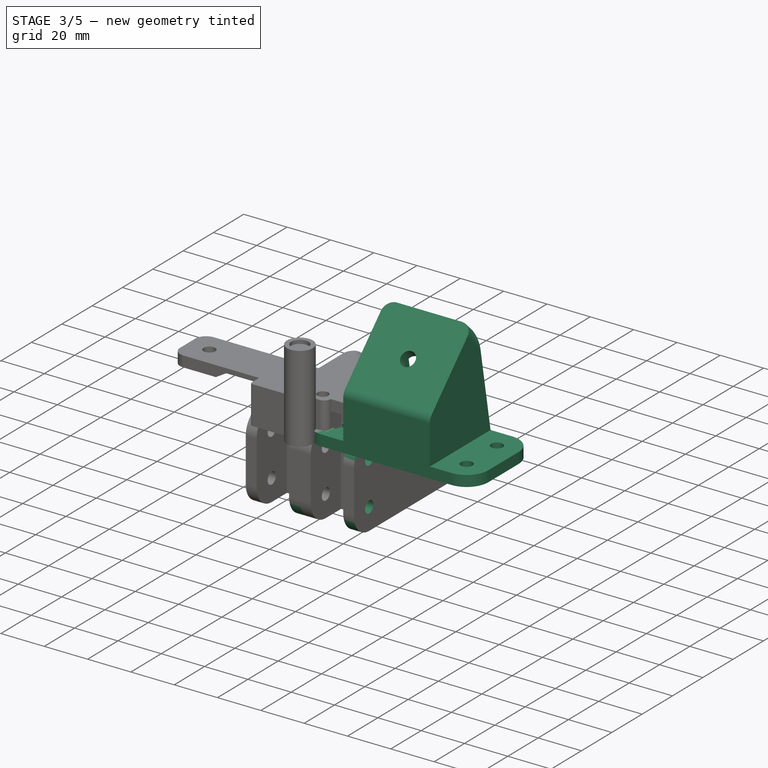
[diagram: stage 3 of 5 — iso view after this stage's code; geometry added in this stage tinted green]
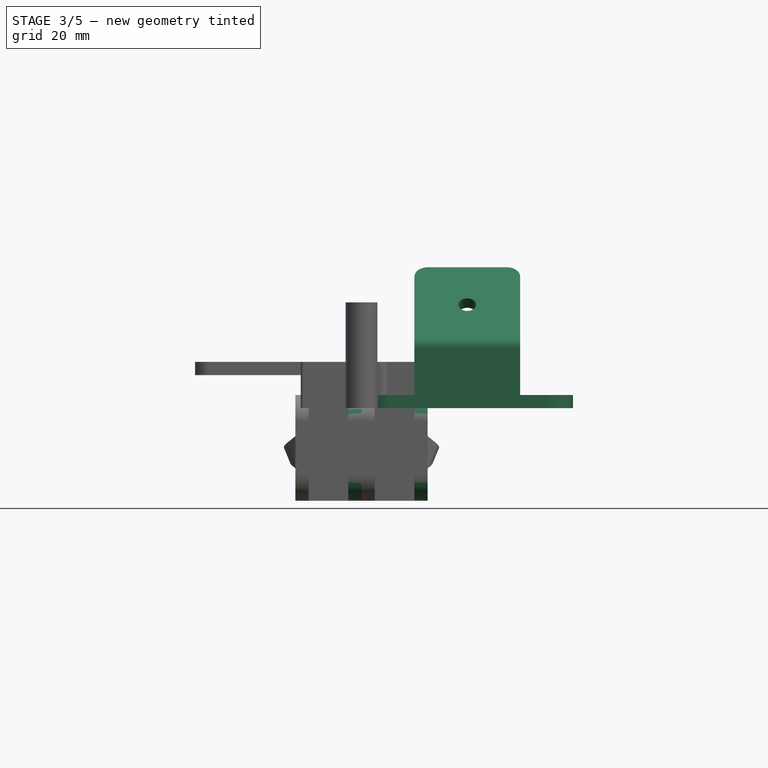
[diagram: stage 3 of 5 — front view after this stage's code; geometry added in this stage tinted green]
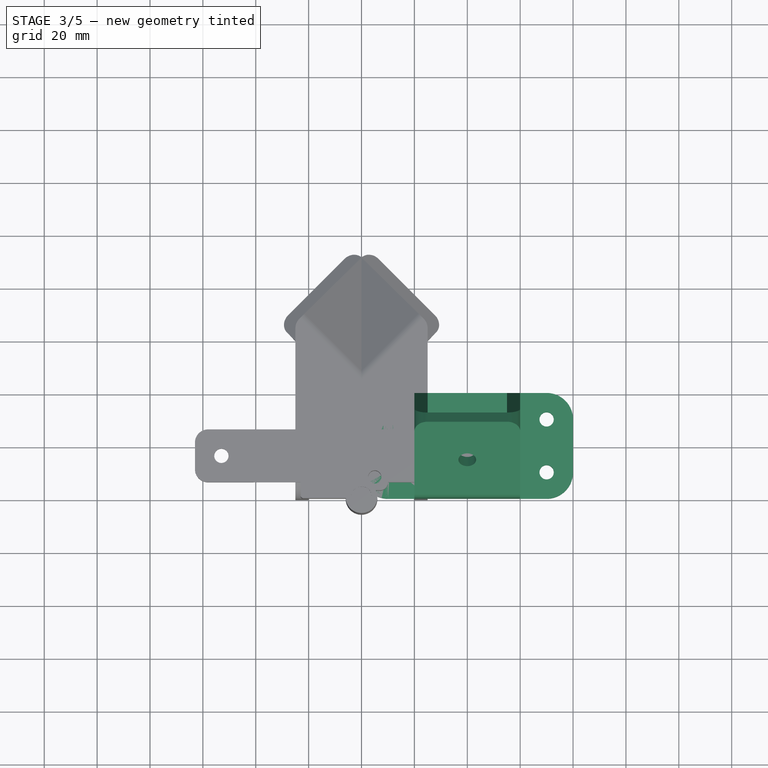
[diagram: stage 3 of 5 — top view after this stage's code; geometry added in this stage tinted green]
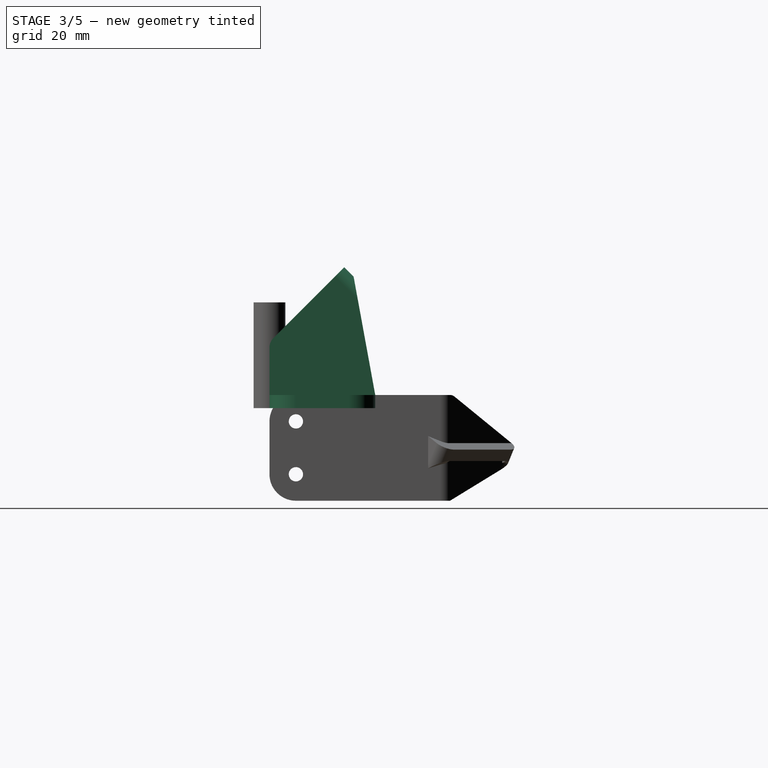
[diagram: stage 3 of 5 — right view after this stage's code; geometry added in this stage tinted green]
FEATURE [PartDesign::Body] Body045
  Group = -> [Sketch099,Pad079,Sketch100,Pad080,Sketch101,Pad081,Sketch102,Pocket024,Sketch103,Pocket025,Sketch104,Pad082,Sketch105,Pad083,Sketch106,Pocket026,Sketch107,Pocket027,Fillet013,Fillet014]
  Origin = -> Origin057
  Placement = pos=(20,0,0) rot=(0,0,1;0rad)
  Tip = -> Fillet014
FEATURE [App::Part] Part011  label="Center Camera Mount"
  Group = -> [Body044,Body045]
  Origin = -> Origin055
FEATURE [Sketcher::SketchObject] Sketch108
  FullyConstrained = true
  MapMode = 5
  Support = -> [XY_Plane059]
  sketch-geometry (4):
    g0: LineSegment StartX=0 StartY=0 StartZ=0 EndX=80 EndY=0 EndZ=0
    g1: LineSegment StartX=80 StartY=0 StartZ=0 EndX=80 EndY=40 EndZ=0
    g2: LineSegment StartX=80 StartY=40 StartZ=0 EndX=0 EndY=40 EndZ=0
    g3: LineSegment StartX=0 StartY=40 StartZ=0 EndX=0 EndY=0 EndZ=0
  constraints (11):
    c: Coincident(g0,g1)
    c: Coincident(g1,g2)
    c: Coincident(g2,g3)
    c: Coincident(g3,g0)
    c: Horizontal(g0)
    c: Horizontal(g2)
    c: Vertical(g1)
    c: Vertical(g3)
    c: Coincident(g0,g-1)
    c: DistanceY(g3,g3) = 40
    c: DistanceX(g2,g2) = 80
FEATURE [PartDesign::Pad] Pad084
  Direction = (0,0,1)
  Length = 5
  Length2 = 10
  Profile = -> Sketch108
  ReferenceAxis = -> Sketch108 [N_Axis]
  Type = 0
FEATURE [Sketcher::SketchObject] Sketch109
  ExternalGeometry = -> [Pad084]
  FullyConstrained = true
  MapMode = 5
  Placement = pos=(0,0,5) rot=(0,0,1;0rad)
  Support = -> [Pad084]
  sketch-geometry (8):
    g0: Circle CenterX=10 CenterY=30 CenterZ=0 NormalX=0 NormalY=0 NormalZ=1 AngleXU=0 Radius=2.7
    g1: Circle CenterX=10 CenterY=10 CenterZ=0 NormalX=0 NormalY=0 NormalZ=1 AngleXU=0 Radius=2.7
    g2: Circle CenterX=70 CenterY=30 CenterZ=0 NormalX=0 NormalY=0 NormalZ=1 AngleXU=0 Radius=2.7
    g3: Circle CenterX=70 CenterY=10 CenterZ=0 NormalX=0 NormalY=0 NormalZ=1 AngleXU=0 Radius=2.7
    g4: LineSegment StartX=10 StartY=30 StartZ=0 EndX=70 EndY=30 EndZ=0
    g5: LineSegment StartX=70 StartY=30 StartZ=0 EndX=70 EndY=10 EndZ=0
    g6: LineSegment StartX=70 StartY=10 StartZ=0 EndX=10 EndY=10 EndZ=0
    g7: LineSegment StartX=10 StartY=10 StartZ=0 EndX=10 EndY=30 EndZ=0
  constraints (20):
    c: Equal(g0,g1)
    c: Equal(g0,g3)
    c: Equal(g0,g2)
    c: Diameter(g0) = 5.4
    c: Coincident(g4,g5)
    c: Coincident(g5,g6)
    c: Coincident(g6,g7)
    c: Coincident(g7,g4)
    c: Horizontal(g4)
    c: Horizontal(g6)
    c: Vertical(g5)
    c: Vertical(g7)
    c: Coincident(g4,g0)
    c: Coincident(g5,g3)
    c: Coincident(g1,g6)
    c: Coincident(g4,g2)
    c: DistanceX(g-4,g1) = 10
    c: DistanceX(g2,g-3) = 10
    c: DistanceY(g-4,g1) = 10
    c: DistanceY(g2,g-3) = 10
FEATURE [PartDesign::Pocket] Pocket028
  BaseFeature = -> Pad084
  Direction = (0,0,-1)
  Length = 5
  Length2 = 5
  Profile = -> Sketch109
  ReferenceAxis = -> Sketch109 [N_Axis]
  Type = 1
FEATURE [PartDesign::Fillet] Fillet015
  Base = -> Pocket028 [Edge1,Edge5,Edge2,Edge8]
  BaseFeature = -> Pocket028
  Radius = 10
  SupportTransform = false
  UseAllEdges = false
FEATURE [PartDesign::Body] Body046
  Group = -> [Sketch108,Pad084,Sketch109,Pocket028,Fillet015]
  Origin = -> Origin059
  Tip = -> Fillet015
FEATURE [Sketcher::SketchObject] Sketch110
  FullyConstrained = true
  MapMode = 5
  Placement = pos=(0,0,0) rot=(0.57735,0.57735,0.57735;2.0944rad)
  Support = -> [YZ_Plane060]
  sketch-geometry (6):
    g0: LineSegment StartX=0 StartY=25 StartZ=0 EndX=28.2843 EndY=53.2843 EndZ=0
    g1: LineSegment StartX=28.2843 StartY=53.2843 StartZ=0 EndX=31.8198 EndY=49.7487 EndZ=0
    g2: LineSegment StartX=0 StartY=25 StartZ=0 EndX=0 EndY=5 EndZ=0
    g3: LineSegment StartX=0 StartY=5 StartZ=0 EndX=5 EndY=5 EndZ=0
    g4: LineSegment StartX=5 StartY=5 StartZ=0 EndX=5 EndY=22.9289 EndZ=0
    g5: LineSegment StartX=5 StartY=22.9289 StartZ=0 EndX=31.8198 EndY=49.7487 EndZ=0
  constraints (18):
    c: PointOnObject(g0,g-2)
    c: Coincident(g1,g0)
    c: Angle(g-1,g0) = 0.785398
    c: Distance(g0) = 40
    c: Perpendicular(g1,g0)
    c: Coincident(g2,g0)
    c: PointOnObject(g2,g-2)
    c: Coincident(g3,g2)
    c: Horizontal(g3)
    c: Coincident(g4,g3)
    c: Vertical(g4)
    c: Distance(g3) = 5
    c: Equal(g3,g1)
    c: Coincident(g5,g4)
    c: Coincident(g5,g1)
    c: Parallel(g0,g5)
    c: DistanceY(g2,g2) = 20
    c: DistanceY(g-1,g2) = 5
FEATURE [PartDesign::Pad] Pad085
  Direction = (1,-2e-16,3e-16)
  Length = 40
  Length2 = 10
  Placement = pos=(0,0,0) rot=(0.57735,0.57735,0.57735;2.0944rad)
  Profile = -> Sketch110
  ReferenceAxis = -> Sketch110 [N_Axis]
  Type = 0
FEATURE [Sketcher::SketchObject] Sketch111
  ExternalGeometry = -> [Pad085]
  FullyConstrained = true
  MapMode = 5
  Placement = pos=(-1.4e-15,2.2e-15,5) rot=(0.707107,0.707107,0;3.14159rad)
  Support = -> [Pad085]
  sketch-geometry (3):
    g0: LineSegment StartX=31.8198 StartY=-6.7e-15 StartZ=0 EndX=5 EndY=-6.7e-15 EndZ=0
    g1: LineSegment StartX=31.8198 StartY=-6.7e-15 StartZ=0 EndX=5 EndY=-2.2e-15 EndZ=0
    g2: LineSegment StartX=5 StartY=-2.2e-15 StartZ=0 EndX=5 EndY=-6.7e-15 EndZ=0
  constraints (7):
    c: Coincident(g0,g-3)
    c: Horizontal(g0)
    c: Coincident(g1,g0)
    c: Coincident(g1,g-3)
    c: Coincident(g2,g1)
    c: Coincident(g2,g0)
    c: Vertical(g2)
FEATURE [PartDesign::Pad] Pad086
  BaseFeature = -> Pad085
  Direction = (4e-16,-6e-16,-1)
  Length = 5
  Length2 = 10
  Placement = pos=(0,0,0) rot=(0.57735,0.57735,0.57735;2.0944rad)
  Profile = -> Sketch111
  ReferenceAxis = -> Sketch111 [N_Axis]
  Reversed = true
  Type = 0
FEATURE [Sketcher::SketchObject] Sketch112
  ExternalGeometry = -> [Pad086]
  FullyConstrained = true
  MapMode = 5
  Placement = pos=(40,-8.8e-15,8.8e-15) rot=(0.57735,0.57735,0.57735;2.0944rad)
  Support = -> [Pad086]
  sketch-geometry (3):
    g0: LineSegment StartX=7.1e-15 StartY=5 StartZ=0 EndX=5 EndY=5 EndZ=0
    g1: LineSegment StartX=5 StartY=5 StartZ=0 EndX=7.1e-15 EndY=5 EndZ=0
    g2: LineSegment StartX=7.1e-15 StartY=5 StartZ=0 EndX=7.1e-15 EndY=5 EndZ=0
  constraints (7):
    c: Coincident(g0,g-3)
    c: Coincident(g0,g-3)
    c: Coincident(g1,g0)
    c: Horizontal(g1)
    c: Coincident(g2,g1)
    c: Coincident(g2,g0)
    c: Vertical(g2)
FEATURE [PartDesign::Pad] Pad087
  BaseFeature = -> Pad086
  Direction = (1,-9e-16,6e-16)
  Length = 5
  Length2 = 10
  Placement = pos=(0,0,0) rot=(0.57735,0.57735,0.57735;2.0944rad)
  Profile = -> Sketch112
  ReferenceAxis = -> Sketch112 [N_Axis]
  Reversed = true
  Type = 0
FEATURE [Sketcher::SketchObject] Sketch113
  ExternalGeometry = -> [Pad087]
  FullyConstrained = true
  MapMode = 5
  Placement = pos=(-9e-15,-12.5,12.5) rot=(0.357407,0.357407,-0.862856;1.71777rad)
  Support = -> [Pad087]
  sketch-geometry (4):
    g0: Circle CenterX=-37.6777 CenterY=20 CenterZ=0 NormalX=0 NormalY=0 NormalZ=1 AngleXU=0 Radius=3.25
    g1: LineSegment StartX=-57.6777 StartY=1.43e-14 StartZ=0 EndX=-37.6777 EndY=20 EndZ=0
    g2: LineSegment StartX=-57.6777 StartY=40 StartZ=0 EndX=-37.6777 EndY=20 EndZ=0
    g3: LineSegment StartX=-37.6777 StartY=20 StartZ=0 EndX=-17.6777 EndY=40 EndZ=0
  constraints (9):
    c: Coincident(g1,g-3)
    c: Coincident(g1,g0)
    c: Coincident(g2,g-3)
    c: Coincident(g2,g0)
    c: Coincident(g3,g0)
    c: Coincident(g3,g-4)
    c: Equal(g1,g2)
    c: Equal(g2,g3)
    c: Diameter(g0) = 6.5
FEATURE [PartDesign::Pocket] Pocket029
  BaseFeature = -> Pad087
  Direction = (9e-16,0.707107,-0.707107)
  Length = 5
  Length2 = 5
  Placement = pos=(0,0,0) rot=(0.57735,0.57735,0.57735;2.0944rad)
  Profile = -> Sketch113
  ReferenceAxis = -> Sketch113 [N_Axis]
  Type = 2
FEATURE [Sketcher::SketchObject] Sketch114
  ExternalGeometry = -> [Pad086]
  FullyConstrained = true
  MapMode = 5
  Placement = pos=(-9e-15,-12.5,12.5) rot=(0.357407,0.357407,-0.862856;1.71777rad)
  Support = -> [Pad086]
  sketch-geometry (4):
    g0: Circle CenterX=-37.6777 CenterY=20 CenterZ=0 NormalX=0 NormalY=0 NormalZ=1 AngleXU=0 Radius=3.35
    g1: LineSegment StartX=-57.6777 StartY=40 StartZ=0 EndX=-37.6777 EndY=20 EndZ=0
    g2: LineSegment StartX=-37.6777 StartY=20 StartZ=0 EndX=-17.6777 EndY=40 EndZ=0
    g3: LineSegment StartX=-37.6777 StartY=20 StartZ=0 EndX=-17.6777 EndY=0 EndZ=0
  constraints (9):
    c: Diameter(g0) = 6.7
    c: Coincident(g1,g-4)
    c: Coincident(g1,g0)
    c: Coincident(g2,g0)
    c: Coincident(g2,g-4)
    c: Coincident(g3,g0)
    c: Coincident(g3,g-3)
    c: Equal(g1,g2)
    c: Equal(g3,g2)
FEATURE [PartDesign::Pocket] Pocket030
  BaseFeature = -> Pocket029
  Direction = (8e-16,0.707107,-0.707107)
  Length = 5
  Length2 = 5
  Placement = pos=(0,0,0) rot=(0.57735,0.57735,0.57735;2.0944rad)
  Profile = -> Sketch114
  ReferenceAxis = -> Sketch114 [N_Axis]
  Type = 0
FEATURE [Sketcher::SketchObject] Sketch115
  ExternalGeometry = -> [Pocket030]
  FullyConstrained = true
  MapMode = 5
  Placement = pos=(0,0,0) rot=(0.57735,0.57735,-0.57735;4.18879rad)
  Support = -> [Pocket030]
  sketch-geometry (4):
    g0: LineSegment StartX=5 StartY=-5 StartZ=0 EndX=5 EndY=-22.9289 EndZ=0
    g1: LineSegment StartX=5 StartY=-22.9289 StartZ=0 EndX=31.8198 EndY=-49.7487 EndZ=0
    g2: LineSegment StartX=40 StartY=-5 StartZ=0 EndX=5 EndY=-5 EndZ=0
    g3: LineSegment StartX=31.8198 StartY=-49.7487 StartZ=0 EndX=40 EndY=-5 EndZ=0
  constraints (9):
    c: Coincident(g0,g-3)
    c: Coincident(g0,g-4)
    c: Coincident(g1,g0)
    c: Coincident(g1,g-4)
    c: Coincident(g2,g0)
    c: Horizontal(g2)
    c: DistanceX(g2,g2) = 35
    c: Coincident(g3,g1)
    c: Coincident(g3,g2)
FEATURE [PartDesign::Pad] Pad088
  BaseFeature = -> Pocket030
  Direction = (-1,2e-16,-2e-16)
  Length = 5
  Length2 = 10
  Placement = pos=(0,0,0) rot=(0.57735,0.57735,0.57735;2.0944rad)
  Profile = -> Sketch115
  ReferenceAxis = -> Sketch115 [N_Axis]
  Reversed = true
  Type = 0
FEATURE [Sketcher::SketchObject] Sketch116
  ExternalGeometry = -> [Pad088]
  FullyConstrained = true
  MapMode = 5
  Placement = pos=(40,-8.8e-15,8.8e-15) rot=(0.57735,0.57735,0.57735;2.0944rad)
  Support = -> [Pad088]
  sketch-geometry (4):
    g0: LineSegment StartX=5 StartY=5 StartZ=0 EndX=40 EndY=5 EndZ=0
    g1: LineSegment StartX=5 StartY=5 StartZ=0 EndX=5 EndY=22.9289 EndZ=0
    g2: LineSegment StartX=5 StartY=22.9289 StartZ=0 EndX=31.8198 EndY=49.7487 EndZ=0
    g3: LineSegment StartX=31.8198 StartY=49.7487 StartZ=0 EndX=40 EndY=5 EndZ=0
  constraints (9):
    c: Coincident(g0,g-3)
    c: Horizontal(g0)
    c: Coincident(g1,g0)
    c: Coincident(g1,g-4)
    c: Coincident(g2,g1)
    c: Coincident(g2,g-4)
    c: Coincident(g3,g2)
    c: Coincident(g3,g0)
    c: DistanceX(g0,g0) = 35
FEATURE [PartDesign::Pad] Pad089
  BaseFeature = -> Pad088
  Direction = (1,-2e-16,2e-16)
  Length = 5
  Length2 = 10
  Placement = pos=(0,0,0) rot=(0.57735,0.57735,0.57735;2.0944rad)
  Profile = -> Sketch116
  ReferenceAxis = -> Sketch116 [N_Axis]
  Reversed = true
  Type = 0
FEATURE [Sketcher::SketchObject] Sketch117
  ExternalGeometry = -> [Pad089]
  FullyConstrained = true
  MapMode = 5
  Placement = pos=(-9e-15,-12.5,12.5) rot=(0.357407,0.357407,-0.862856;1.71777rad)
  Support = -> [Pad089]
  sketch-geometry (3):
    g0: ArcOfCircle CenterX=-52.6777 CenterY=35 CenterZ=0 NormalX=0 NormalY=0 NormalZ=1 AngleXU=0 Radius=5 StartAngle=1.57079 EndAngle=3.1416
    g1: LineSegment StartX=-57.6777 StartY=35 StartZ=0 EndX=-57.6777 EndY=40 EndZ=0
    g2: LineSegment StartX=-57.6777 StartY=40 StartZ=0 EndX=-52.6776 EndY=40 EndZ=0
  constraints (9):
    c: Coincident(g1,g0)
    c: Vertical(g1)
    c: Tangent(g1,g0)
    c: Coincident(g2,g1)
    c: Coincident(g2,g0)
    c: Horizontal(g2)
    c: Radius(g0) = 5
    c: Coincident(g1,g-4)
    c: Equal(g2,g1)
FEATURE [PartDesign::Pocket] Pocket031
  BaseFeature = -> Pad089
  Direction = (7e-16,0.707107,-0.707107)
  Length = 5
  Length2 = 5
  Placement = pos=(0,0,0) rot=(0.57735,0.57735,0.57735;2.0944rad)
  Profile = -> Sketch117
  ReferenceAxis = -> Sketch117 [N_Axis]
  Type = 1
FEATURE [Sketcher::SketchObject] Sketch118
  ExternalGeometry = -> [Pocket031]
  FullyConstrained = true
  MapMode = 5
  Placement = pos=(-9e-15,-12.5,12.5) rot=(0.357407,0.357407,-0.862856;1.71777rad)
  Support = -> [Pocket031]
  sketch-geometry (3):
    g0: ArcOfCircle CenterX=-52.6777 CenterY=5 CenterZ=0 NormalX=0 NormalY=0 NormalZ=1 AngleXU=0 Radius=5 StartAngle=3.14159 EndAngle=4.71239
    g1: LineSegment StartX=-57.6777 StartY=5 StartZ=0 EndX=-57.6777 EndY=5.06e-14 EndZ=0
    g2: LineSegment StartX=-57.6777 StartY=5.05e-14 StartZ=0 EndX=-52.6777 EndY=5.05e-14 EndZ=0
  constraints (8):
    c: Vertical(g1)
    c: Coincident(g2,g1)
    c: Coincident(g2,g0)
    c: Horizontal(g2)
    c: Radius(g0) = 5
    c: Coincident(g1,g-4)
    c: Equal(g1,g2)
    c: Tangent(g1,g0) = -1.5708
FEATURE [PartDesign::Pocket] Pocket032
  BaseFeature = -> Pocket031
  Direction = (8e-16,0.707107,-0.707107)
  Length = 5
  Length2 = 5
  Placement = pos=(0,0,0) rot=(0.57735,0.57735,0.57735;2.0944rad)
  Profile = -> Sketch118
  ReferenceAxis = -> Sketch118 [N_Axis]
  Type = 1
FEATURE [PartDesign::Fillet] Fillet016
  Base = -> Pocket032 [Edge6]
  BaseFeature = -> Pocket032
  Placement = pos=(0,0,0) rot=(0.57735,0.57735,0.57735;2.0944rad)
  Radius = 5
  SupportTransform = false
  UseAllEdges = false
FEATURE [PartDesign::Fillet] Fillet017
  Base = -> Fillet016 [Edge47]
  BaseFeature = -> Fillet016
  Placement = pos=(0,0,0) rot=(0.57735,0.57735,0.57735;2.0944rad)
  Radius = 5
  SupportTransform = false
  UseAllEdges = false
FEATURE [PartDesign::Body] Body047
  Group = -> [Sketch110,Pad085,Sketch111,Pad086,Sketch112,Pad087,Sketch113,Pocket029,Sketch114,Pocket030,Sketch115,Pad088,Sketch116,Pad089,Sketch117,Pocket031,Sketch118,Pocket032,Fillet016,Fillet017]
  Origin = -> Origin060
  Placement = pos=(20,0,0) rot=(0,0,1;0rad)
  Tip = -> Fillet017
FEATURE [App::Part] Part012  label="Center Camera Mount 3 Part001"
  Group = -> [Body046,Body047]
  Origin = -> Origin058
FEATURE [Part::MultiFuse] Fusion007  label="Center Camera Mount Boolean"
  Shapes = -> [Part012]
FEATURE [PartDesign::Fillet] Fillet020
  Base = -> Fillet019 [Edge20]
  BaseFeature = -> Fillet019
  Radius = 4.99
  SupportTransform = false
  UseAllEdges = false
FEATURE [Sketcher::SketchObject] Sketch130
  ExternalGeometry = -> [Fillet020]
  FullyConstrained = true
  MapMode = 5
  Placement = pos=(-5,0,0) rot=(0.57735,-0.57735,-0.57735;2.0944rad)
  Support = -> [Fillet020]
  sketch-geometry (2):
    g0: Circle CenterX=-10 CenterY=-5 CenterZ=0 NormalX=0 NormalY=0 NormalZ=1 AngleXU=0 Radius=2.7
    g1: Circle CenterX=-10 CenterY=-25 CenterZ=0 NormalX=0 NormalY=0 NormalZ=1 AngleXU=0 Radius=2.7
  constraints (6):
    c: Equal(g0,g1)
    c: Diameter(g0) = 5.4
    c: DistanceY(g0,g-3) = 10
    c: DistanceX(g0,g-3) = 10
    c: Vertical(g1,g0)
    c: DistanceY(g1,g0) = 20
FEATURE [PartDesign::Pocket] Pocket035
  BaseFeature = -> Fillet020
  Direction = (1,0,0)
  Length = 5
  Length2 = 5
  Profile = -> Sketch130
  ReferenceAxis = -> Sketch130 [N_Axis]
  Type = 1
FEATURE [Sketcher::SketchObject] Sketch131
  ExternalGeometry = -> [Pocket035]
  FullyConstrained = true
  MapMode = 5
  Placement = pos=(-5,0,0) rot=(0.57735,-0.57735,-0.57735;2.0944rad)
  Support = -> [Pocket035]
  sketch-geometry (3):
    g0: ArcOfCircle CenterX=-10 CenterY=-25 CenterZ=0 NormalX=0 NormalY=0 NormalZ=1 AngleXU=0 Radius=10 StartAngle=4.71239 EndAngle=6.28319
    g1: LineSegment StartX=-10 StartY=-35 StartZ=0 EndX=0 EndY=-35 EndZ=0
    g2: LineSegment StartX=0 StartY=-35 StartZ=0 EndX=0 EndY=-25 EndZ=0
  constraints (7):
    c: Coincident(g0,g-3)
    c: Horizontal(g1)
    c: Coincident(g2,g1)
    c: Coincident(g2,g0)
    c: Tangent(g1,g0) = -1.5708
    c: Equal(g1,g2)
    c: Coincident(g-5,g1)
FEATURE [PartDesign::Pocket] Pocket036
  BaseFeature = -> Pocket035
  Direction = (1,0,0)
  Length = 5
  Length2 = 5
  Profile = -> Sketch131
  ReferenceAxis = -> Sketch131 [N_Axis]
  Type = 1
FEATURE [Sketcher::SketchObject] Sketch132
  ExternalGeometry = -> [Pocket036]
  FullyConstrained = true
  MapMode = 5
  Placement = pos=(-5,0,0) rot=(0.57735,-0.57735,-0.57735;2.0944rad)
  Support = -> [Pocket036]
  sketch-geometry (3):
    g0: ArcOfCircle CenterX=-10 CenterY=-5 CenterZ=0 NormalX=0 NormalY=0 NormalZ=1 AngleXU=0 Radius=10 StartAngle=-5.889e-13 EndAngle=1.5708
    g1: LineSegment StartX=-10 StartY=5 StartZ=0 EndX=0 EndY=5 EndZ=0
    g2: LineSegment StartX=0 StartY=5 StartZ=0 EndX=6.11e-13 EndY=-5 EndZ=0
  constraints (7):
    c: Coincident(g0,g-3)
    c: Horizontal(g1)
    c: Coincident(g2,g1)
    c: Coincident(g2,g0)
    c: Equal(g1,g2)
    c: Tangent(g1,g0) = 1.5708
    c: Coincident(g1,g-6)
FEATURE [PartDesign::Pocket] Pocket037
  BaseFeature = -> Pocket036
  Direction = (1,0,0)
  Length = 5
  Length2 = 5
  Profile = -> Sketch132
  ReferenceAxis = -> Sketch132 [N_Axis]
  Type = 1
FEATURE [Sketcher::SketchObject] Sketch133
  ExternalGeometry = -> [Pocket037]
  FullyConstrained = true
  MapMode = 5
  Placement = pos=(-7.39277,7.39277,18.1085) rot=(-0.72553,-0.675307,0.132537;0.52837rad)
  Support = -> [Pocket037]
  sketch-geometry (3):
    g0: LineSegment StartX=0.939519 StartY=90.1828 StartZ=0 EndX=4.71916 EndY=93.4561 EndZ=0
    g1: LineSegment StartX=4.71916 StartY=93.4561 StartZ=0 EndX=7.99243 EndY=89.6765 EndZ=0
    g2: ArcOfCircle CenterX=4.21279 CenterY=86.4032 CenterZ=0 NormalX=0 NormalY=0 NormalZ=1 AngleXU=0 Radius=5 StartAngle=0.713724 EndAngle=2.28452
  constraints (8):
    c: Coincident(g1,g0)
    c: Coincident(g2,g1)
    c: Perpendicular(g1,g0)
    c: Tangent(g2,g0) = 1.5708
    c: Equal(g0,g1)
    c: Coincident(g0,g-4)
    c: Tangent(g1,g-4)
    c: Radius(g2) = 5
FEATURE [PartDesign::Pocket] Pocket038
  BaseFeature = -> Pocket037
  Direction = (0.353553,-0.353553,-0.866025)
  Length = 5
  Length2 = 5
  Profile = -> Sketch133
  ReferenceAxis = -> Sketch133 [N_Axis]
  Type = 1
FEATURE [Sketcher::SketchObject] Sketch134
  ExternalGeometry = -> [Pocket038]
  FullyConstrained = true
  MapMode = 5
  Placement = pos=(-7.39277,7.39277,18.1085) rot=(-0.72553,-0.675307,0.132537;0.52837rad)
  Support = -> [Pocket038]
  sketch-geometry (3):
    g0: LineSegment StartX=-25.518 StartY=67.27 StartZ=0 EndX=-21.7383 EndY=70.5432 EndZ=0
    g1: LineSegment StartX=-25.518 StartY=67.27 StartZ=0 EndX=-22.2447 EndY=63.4903 EndZ=0
    g2: ArcOfCircle CenterX=-18.4651 CenterY=66.7636 CenterZ=0 NormalX=0 NormalY=0 NormalZ=1 AngleXU=0 Radius=5 StartAngle=2.28452 EndAngle=3.85532
  constraints (8):
    c: Coincident(g1,g0)
    c: Coincident(g2,g0)
    c: Perpendicular(g0,g1)
    c: Radius(g2) = 5
    c: Tangent(g2,g1) = -1.5708
    c: Coincident(g0,g-4)
    c: PointOnObject(g1,g-4)
    c: Equal(g1,g0)
FEATURE [PartDesign::Pocket] Pocket039
  BaseFeature = -> Pocket038
  Direction = (0.353553,-0.353553,-0.866025)
  Length = 5
  Length2 = 5
  Profile = -> Sketch134
  ReferenceAxis = -> Sketch134 [N_Axis]
  Type = 1
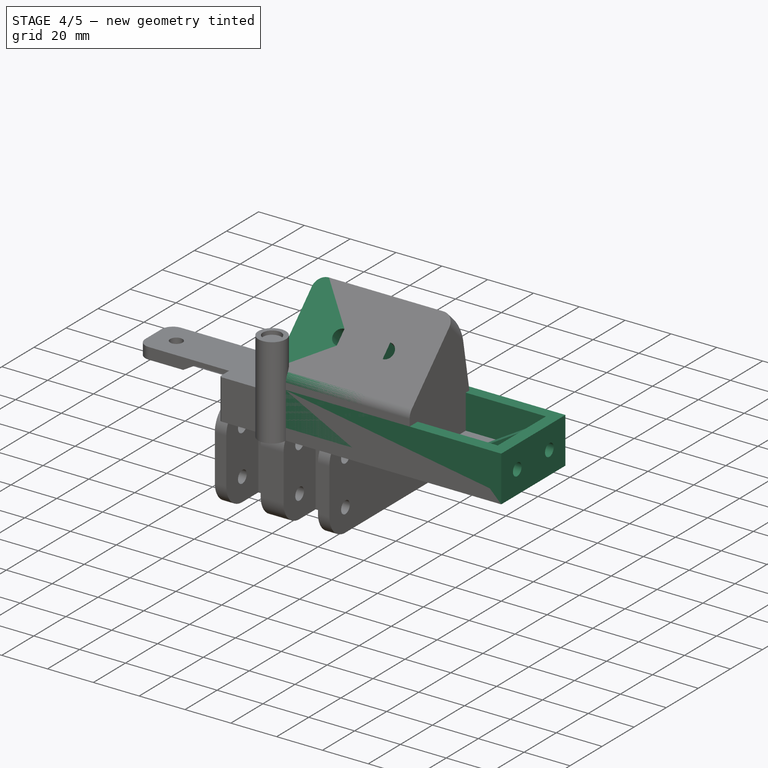
[diagram: stage 4 of 5 — iso view after this stage's code; geometry added in this stage tinted green]
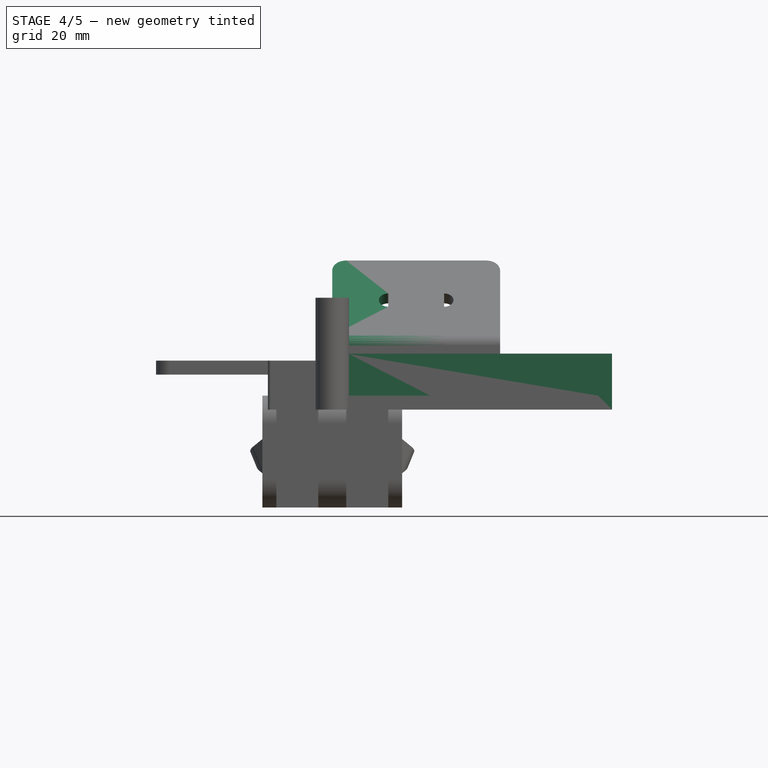
[diagram: stage 4 of 5 — front view after this stage's code; geometry added in this stage tinted green]
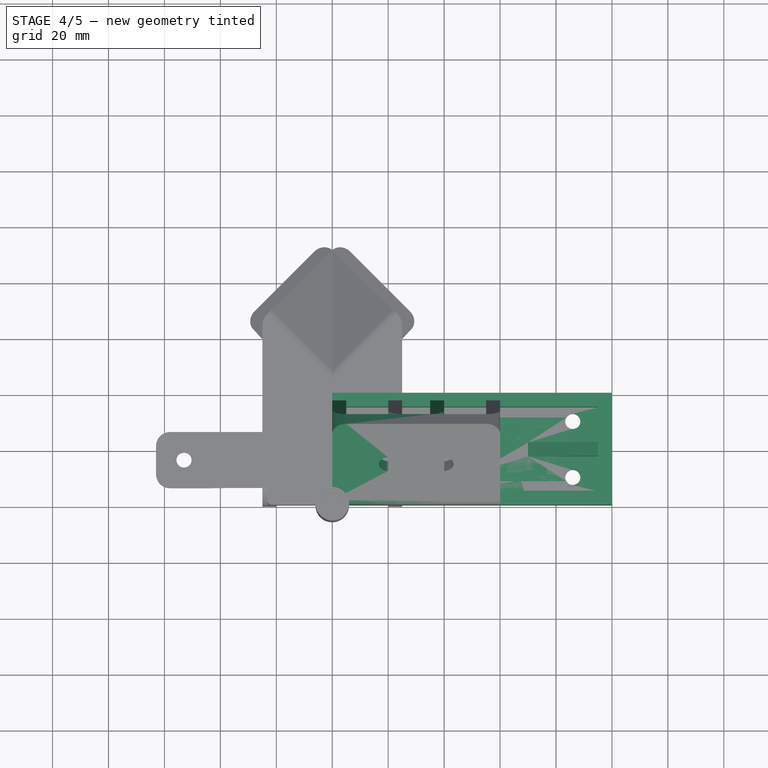
[diagram: stage 4 of 5 — top view after this stage's code; geometry added in this stage tinted green]
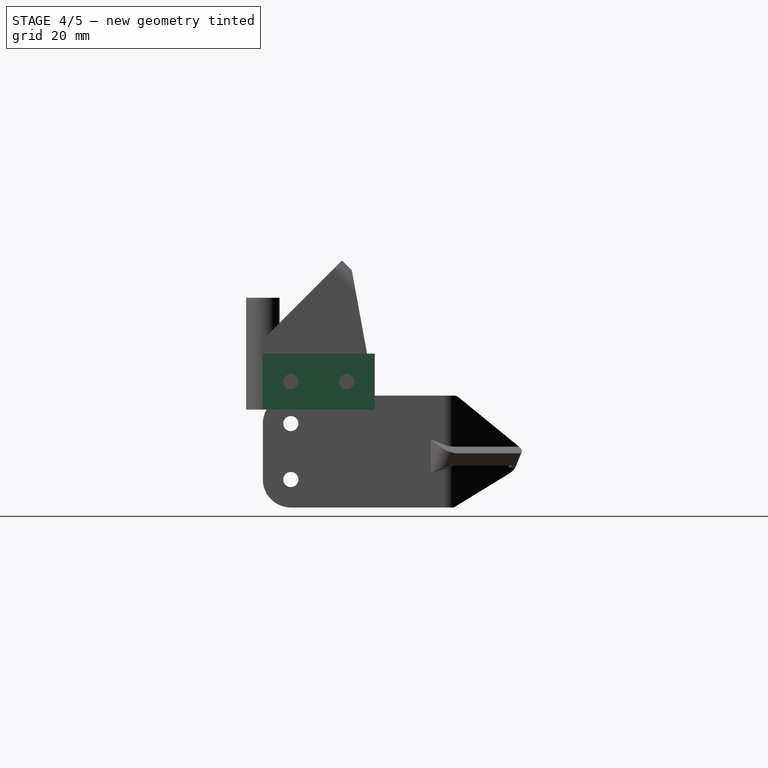
[diagram: stage 4 of 5 — right view after this stage's code; geometry added in this stage tinted green]
FEATURE [PartDesign::Body] Body034
  Group = -> [Sketch079,Pad064,Sketch080,Pad065,Sketch081,Pocket019,Sketch082,Pocket020,Sketch089,Pad072]
  Origin = -> Origin044
  Tip = -> Pad072
FEATURE [App::Part] Part009  label="10x2cm Connector"
  Group = -> [Body034,Body039,Body040]
  Origin = -> Origin043
FEATURE [Sketcher::SketchObject] Sketch090
  FullyConstrained = true
  MapMode = 5
  Support = -> [XY_Plane052]
  sketch-geometry (4):
    g0: LineSegment StartX=0 StartY=0 StartZ=0 EndX=0 EndY=40 EndZ=0
    g1: LineSegment StartX=0 StartY=40 StartZ=0 EndX=100 EndY=40 EndZ=0
    g2: LineSegment StartX=100 StartY=40 StartZ=0 EndX=100 EndY=0 EndZ=0
    g3: LineSegment StartX=0 StartY=0 StartZ=0 EndX=100 EndY=0 EndZ=0
  constraints (11):
    c: Coincident(g0,g-1)
    c: PointOnObject(g0,g-2)
    c: Coincident(g1,g0)
    c: Horizontal(g1)
    c: Coincident(g2,g1)
    c: PointOnObject(g2,g-1)
    c: Vertical(g2)
    c: Coincident(g3,g0)
    c: Coincident(g3,g2)
    c: DistanceX(g3,g3) = 100
    c: DistanceY(g2,g2) = 40
FEATURE [PartDesign::Pad] Pad073
  Direction = (0,0,1)
  Length = 5
  Length2 = 10
  Profile = -> Sketch090
  ReferenceAxis = -> Sketch090 [N_Axis]
  Type = 0
FEATURE [Sketcher::SketchObject] Sketch091
  ExternalGeometry = -> [Pad073]
  FullyConstrained = true
  MapMode = 5
  Placement = pos=(0,0,5) rot=(0,0,1;0rad)
  Support = -> [Pad073]
  sketch-geometry (8):
    g0: LineSegment StartX=0 StartY=40 StartZ=0 EndX=0 EndY=0 EndZ=0
    g1: LineSegment StartX=0 StartY=0 StartZ=0 EndX=5 EndY=0 EndZ=0
    g2: LineSegment StartX=5 StartY=0 StartZ=0 EndX=5 EndY=40 EndZ=0
    g3: LineSegment StartX=0 StartY=40 StartZ=0 EndX=5 EndY=40 EndZ=0
    g4: LineSegment StartX=100 StartY=40 StartZ=0 EndX=100 EndY=0 EndZ=0
    g5: LineSegment StartX=100 StartY=0 StartZ=0 EndX=95 EndY=0 EndZ=0
    g6: LineSegment StartX=100 StartY=40 StartZ=0 EndX=95 EndY=40 EndZ=0
    g7: LineSegment StartX=95 StartY=0 StartZ=0 EndX=95 EndY=40 EndZ=0
  constraints (20):
    c: Coincident(g0,g-4)
    c: Coincident(g0,g-4)
    c: Coincident(g1,g0)
    c: PointOnObject(g1,g-1)
    c: Coincident(g2,g1)
    c: Vertical(g2)
    c: Coincident(g3,g0)
    c: Coincident(g3,g2)
    c: Horizontal(g3)
    c: DistanceX(g1,g1) = 5
    c: Coincident(g4,g-3)
    c: Coincident(g4,g-3)
    c: Coincident(g5,g4)
    c: PointOnObject(g5,g-1)
    c: Coincident(g6,g4)
    c: Horizontal(g6)
    c: Coincident(g7,g5)
    c: Coincident(g7,g6)
    c: Vertical(g7)
    c: Equal(g1,g5)
FEATURE [PartDesign::Pad] Pad074
  BaseFeature = -> Pad073
  Direction = (0,0,1)
  Length = 15
  Length2 = 10
  Profile = -> Sketch091
  ReferenceAxis = -> Sketch091 [N_Axis]
  Type = 0
FEATURE [Sketcher::SketchObject] Sketch092
  ExternalGeometry = -> [Pad074]
  FullyConstrained = true
  MapMode = 5
  Placement = pos=(0,0,0) rot=(0.57735,-0.57735,-0.57735;2.0944rad)
  Support = -> [Pad074]
  sketch-geometry (2):
    g0: Circle CenterX=-30 CenterY=10 CenterZ=0 NormalX=0 NormalY=0 NormalZ=1 AngleXU=0 Radius=2.7
    g1: Circle CenterX=-10 CenterY=10 CenterZ=0 NormalX=0 NormalY=0 NormalZ=1 AngleXU=0 Radius=2.7
  constraints (6):
    c: Diameter(g0) = 5.4
    c: Diameter(g1) = 5.4
    c: DistanceY(g-3,g1) = 10
    c: DistanceX(g1,g-3) = 10
    c: DistanceX(g0,g1) = 20
    c: Horizontal(g0,g1)
FEATURE [PartDesign::Pocket] Pocket021
  BaseFeature = -> Pad074
  Direction = (1,0,0)
  Length = 5
  Length2 = 5
  Profile = -> Sketch092
  ReferenceAxis = -> Sketch092 [N_Axis]
  Type = 1
FEATURE [Sketcher::SketchObject] Sketch093
  FullyConstrained = true
  MapMode = 5
  Placement = pos=(0,0,5) rot=(0,0,1;0rad)
  Support = -> [Pocket021]
  sketch-geometry (6):
    g0: Circle CenterX=14 CenterY=30 CenterZ=0 NormalX=0 NormalY=0 NormalZ=1 AngleXU=0 Radius=2.7
    g1: Circle CenterX=14 CenterY=10 CenterZ=0 NormalX=0 NormalY=0 NormalZ=1 AngleXU=0 Radius=2.7
    g2: Circle CenterX=86 CenterY=30 CenterZ=0 NormalX=0 NormalY=0 NormalZ=1 AngleXU=0 Radius=2.7
    g3: Circle CenterX=86 CenterY=10 CenterZ=0 NormalX=0 NormalY=0 NormalZ=1 AngleXU=0 Radius=2.7
    g4: Circle CenterX=50 CenterY=30 CenterZ=0 NormalX=0 NormalY=0 NormalZ=1 AngleXU=0 Radius=2.7
    g5: Circle CenterX=50 CenterY=10 CenterZ=0 NormalX=0 NormalY=0 NormalZ=1 AngleXU=0 Radius=2.7
  constraints (18):
    c: Equal(g1,g0)
    c: Equal(g1,g4)
    c: Equal(g1,g5)
    c: Equal(g1,g3)
    c: Equal(g1,g2)
    c: Diameter(g1) = 5.4
    c: DistanceY(g-1,g1) = 10
    c: DistanceX(g-1,g1) = 14
    c: DistanceX(g0,g4) = 36
    c: DistanceX(g4,g2) = 36
    c: DistanceY(g1,g0) = 20
    c: Horizontal(g5,g1)
    c: Horizontal(g5,g3)
    c: Horizontal(g0,g4)
    c: Horizontal(g4,g2)
    c: Vertical(g1,g0)
    c: Vertical(g4,g5)
    c: Vertical(g3,g2)
FEATURE [PartDesign::Pocket] Pocket022
  BaseFeature = -> Pocket021
  Direction = (0,0,-1)
  Length = 5
  Length2 = 5
  Profile = -> Sketch093
  ReferenceAxis = -> Sketch093 [N_Axis]
  Type = 2
FEATURE [Sketcher::SketchObject] Sketch094
  FullyConstrained = true
  MapMode = 5
  Placement = pos=(0,0,0) rot=(1,0,0;1.5708rad)
  Support = -> [XZ_Plane053]
  sketch-geometry (3):
    g0: LineSegment StartX=0 StartY=15 StartZ=0 EndX=0 EndY=0 EndZ=0
    g1: LineSegment StartX=0 StartY=0 StartZ=0 EndX=25 EndY=0 EndZ=0
    g2: LineSegment StartX=0 StartY=15 StartZ=0 EndX=25 EndY=0 EndZ=0
  constraints (8):
    c: Vertical(g0)
    c: Coincident(g1,g0)
    c: Horizontal(g1)
    c: Coincident(g2,g0)
    c: Coincident(g2,g1)
    c: DistanceX(g1,g1) = 25
    c: DistanceY(g0,g0) = 15
    c: Coincident(g-1,g0)
FEATURE [PartDesign::Pad] Pad075
  Direction = (0,-1,2e-16)
  Length = 5
  Length2 = 10
  Placement = pos=(0,0,0) rot=(1,0,0;1.5708rad)
  Profile = -> Sketch094
  ReferenceAxis = -> Sketch094 [N_Axis]
  Type = 0
FEATURE [PartDesign::Body] Body042  label="Reinforcement018"
  Group = -> [Sketch094,Pad075]
  Origin = -> Origin053
  Placement = pos=(95,17.5,5) rot=(0,0,1;3.14159rad)
  Tip = -> Pad075
FEATURE [Sketcher::SketchObject] Sketch095
  FullyConstrained = true
  MapMode = 5
  Placement = pos=(0,0,0) rot=(1,0,0;1.5708rad)
  Support = -> [XZ_Plane054]
  sketch-geometry (3):
    g0: LineSegment StartX=0 StartY=15 StartZ=0 EndX=0 EndY=0 EndZ=0
    g1: LineSegment StartX=0 StartY=0 StartZ=0 EndX=25 EndY=0 EndZ=0
    g2: LineSegment StartX=0 StartY=15 StartZ=0 EndX=25 EndY=0 EndZ=0
  constraints (8):
    c: Vertical(g0)
    c: Coincident(g1,g0)
    c: Horizontal(g1)
    c: Coincident(g2,g0)
    c: Coincident(g2,g1)
    c: DistanceX(g1,g1) = 25
    c: DistanceY(g0,g0) = 15
    c: Coincident(g-1,g0)
FEATURE [PartDesign::Pad] Pad076
  Direction = (0,-1,2e-16)
  Length = 5
  Length2 = 10
  Placement = pos=(0,0,0) rot=(1,0,0;1.5708rad)
  Profile = -> Sketch095
  ReferenceAxis = -> Sketch095 [N_Axis]
  Type = 0
FEATURE [PartDesign::Body] Body043  label="Reinforcement019"
  Group = -> [Sketch095,Pad076]
  Origin = -> Origin054
  Placement = pos=(5,22.5,5) rot=(0,0,1;0rad)
  Tip = -> Pad076
FEATURE [Sketcher::SketchObject] Sketch096
  ExternalGeometry = -> [Pocket022]
  FullyConstrained = true
  MapMode = 5
  Placement = pos=(0,0,5) rot=(0,0,1;0rad)
  Support = -> [Pocket022]
  sketch-geometry (8):
    g0: LineSegment StartX=5 StartY=40 StartZ=0 EndX=95 EndY=40 EndZ=0
    g1: LineSegment StartX=95 StartY=40 StartZ=0 EndX=95 EndY=35 EndZ=0
    g2: LineSegment StartX=95 StartY=35 StartZ=0 EndX=5 EndY=35 EndZ=0
    g3: LineSegment StartX=5 StartY=35 StartZ=0 EndX=5 EndY=40 EndZ=0
    g4: LineSegment StartX=5 StartY=0 StartZ=0 EndX=95 EndY=0 EndZ=0
    g5: LineSegment StartX=95 StartY=0 StartZ=0 EndX=95 EndY=5 EndZ=0
    g6: LineSegment StartX=95 StartY=5 StartZ=0 EndX=5 EndY=5 EndZ=0
    g7: LineSegment StartX=5 StartY=5 StartZ=0 EndX=5 EndY=0 EndZ=0
  constraints (22):
    c: Coincident(g0,g1)
    c: Coincident(g1,g2)
    c: Coincident(g2,g3)
    c: Coincident(g3,g0)
    c: Horizontal(g0)
    c: Horizontal(g2)
    c: Vertical(g1)
    c: Vertical(g3)
    c: Coincident(g0,g-3)
    c: PointOnObject(g1,g-4)
    c: Coincident(g4,g5)
    c: Coincident(g5,g6)
    c: Coincident(g6,g7)
    c: Coincident(g7,g4)
    c: Horizontal(g4)
    c: Horizontal(g6)
    c: Vertical(g5)
    c: Vertical(g7)
    c: Coincident(g4,g-3)
    c: PointOnObject(g5,g-4)
    c: DistanceY(g7,g7) = 5
    c: DistanceY(g3,g3) = 5
FEATURE [PartDesign::Pad] Pad077
  BaseFeature = -> Pocket022
  Direction = (0,0,1)
  Length = 15
  Length2 = 10
  Profile = -> Sketch096
  ReferenceAxis = -> Sketch096 [N_Axis]
  Type = 0
FEATURE [PartDesign::Body] Body041
  Group = -> [Sketch090,Pad073,Sketch091,Pad074,Sketch092,Pocket021,Sketch093,Pocket022,Sketch096,Pad077]
  Origin = -> Origin052
  Tip = -> Pad077
FEATURE [App::Part] Part010  label="Top to Leg Bracket 003"
  Group = -> [Body041,Body042,Body043]
  Origin = -> Origin051
FEATURE [Part::MultiFuse] Fusion006  label="10x2cm Connector Boolean"
  Shapes = -> [Part010]
FEATURE [Part::Feature] Fusion006_solid  label="10x2cm Connector Boolean (Solid)"
  shape: bbox 100 x 40 x 20 mm, 40 faces (baked)
FEATURE [Sketcher::SketchObject] Sketch097
  FullyConstrained = true
  MapMode = 5
  Support = -> [XY_Plane056]
  sketch-geometry (4):
    g0: LineSegment StartX=0 StartY=0 StartZ=0 EndX=80 EndY=0 EndZ=0
    g1: LineSegment StartX=80 StartY=0 StartZ=0 EndX=80 EndY=40 EndZ=0
    g2: LineSegment StartX=80 StartY=40 StartZ=0 EndX=0 EndY=40 EndZ=0
    g3: LineSegment StartX=0 StartY=40 StartZ=0 EndX=0 EndY=0 EndZ=0
  constraints (11):
    c: Coincident(g0,g1)
    c: Coincident(g1,g2)
    c: Coincident(g2,g3)
    c: Coincident(g3,g0)
    c: Horizontal(g0)
    c: Horizontal(g2)
    c: Vertical(g1)
    c: Vertical(g3)
    c: Coincident(g0,g-1)
    c: DistanceY(g3,g3) = 40
    c: DistanceX(g2,g2) = 80
FEATURE [PartDesign::Pad] Pad078
  Direction = (0,0,1)
  Length = 5
  Length2 = 10
  Profile = -> Sketch097
  ReferenceAxis = -> Sketch097 [N_Axis]
  Type = 0
FEATURE [Sketcher::SketchObject] Sketch098
  ExternalGeometry = -> [Pad078]
  FullyConstrained = true
  MapMode = 5
  Placement = pos=(0,0,5) rot=(0,0,1;0rad)
  Support = -> [Pad078]
  sketch-geometry (8):
    g0: Circle CenterX=10 CenterY=30 CenterZ=0 NormalX=0 NormalY=0 NormalZ=1 AngleXU=0 Radius=2.7
    g1: Circle CenterX=10 CenterY=10 CenterZ=0 NormalX=0 NormalY=0 NormalZ=1 AngleXU=0 Radius=2.7
    g2: Circle CenterX=70 CenterY=30 CenterZ=0 NormalX=0 NormalY=0 NormalZ=1 AngleXU=0 Radius=2.7
    g3: Circle CenterX=70 CenterY=10 CenterZ=0 NormalX=0 NormalY=0 NormalZ=1 AngleXU=0 Radius=2.7
    g4: LineSegment StartX=10 StartY=30 StartZ=0 EndX=70 EndY=30 EndZ=0
    g5: LineSegment StartX=70 StartY=30 StartZ=0 EndX=70 EndY=10 EndZ=0
    g6: LineSegment StartX=70 StartY=10 StartZ=0 EndX=10 EndY=10 EndZ=0
    g7: LineSegment StartX=10 StartY=10 StartZ=0 EndX=10 EndY=30 EndZ=0
  constraints (20):
    c: Equal(g0,g1)
    c: Equal(g0,g3)
    c: Equal(g0,g2)
    c: Diameter(g0) = 5.4
    c: Coincident(g4,g5)
    c: Coincident(g5,g6)
    c: Coincident(g6,g7)
    c: Coincident(g7,g4)
    c: Horizontal(g4)
    c: Horizontal(g6)
    c: Vertical(g5)
    c: Vertical(g7)
    c: Coincident(g4,g0)
    c: Coincident(g5,g3)
    c: Coincident(g1,g6)
    c: Coincident(g4,g2)
    c: DistanceX(g-4,g1) = 10
    c: DistanceX(g2,g-3) = 10
    c: DistanceY(g-4,g1) = 10
    c: DistanceY(g2,g-3) = 10
FEATURE [PartDesign::Pocket] Pocket023
  BaseFeature = -> Pad078
  Direction = (0,0,-1)
  Length = 5
  Length2 = 5
  Profile = -> Sketch098
  ReferenceAxis = -> Sketch098 [N_Axis]
  Type = 1
FEATURE [PartDesign::Fillet] Fillet012
  Base = -> Pocket023 [Edge1,Edge5,Edge2,Edge8]
  BaseFeature = -> Pocket023
  Radius = 10
  SupportTransform = false
  UseAllEdges = false
FEATURE [PartDesign::Body] Body044
  Group = -> [Sketch097,Pad078,Sketch098,Pocket023,Fillet012]
  Origin = -> Origin056
  Tip = -> Fillet012
FEATURE [Sketcher::SketchObject] Sketch099
  FullyConstrained = true
  MapMode = 5
  Placement = pos=(0,0,0) rot=(0.57735,0.57735,0.57735;2.0944rad)
  Support = -> [YZ_Plane057]
  sketch-geometry (6):
    g0: LineSegment StartX=0 StartY=25 StartZ=0 EndX=28.2843 EndY=53.2843 EndZ=0
    g1: LineSegment StartX=28.2843 StartY=53.2843 StartZ=0 EndX=31.8198 EndY=49.7487 EndZ=0
    g2: LineSegment StartX=0 StartY=25 StartZ=0 EndX=0 EndY=5 EndZ=0
    g3: LineSegment StartX=0 StartY=5 StartZ=0 EndX=5 EndY=5 EndZ=0
    g4: LineSegment StartX=5 StartY=5 StartZ=0 EndX=5 EndY=22.9289 EndZ=0
    g5: LineSegment StartX=5 StartY=22.9289 StartZ=0 EndX=31.8198 EndY=49.7487 EndZ=0
  constraints (18):
    c: PointOnObject(g0,g-2)
    c: Coincident(g1,g0)
    c: Angle(g-1,g0) = 0.785398
    c: Distance(g0) = 40
    c: Perpendicular(g1,g0)
    c: Coincident(g2,g0)
    c: PointOnObject(g2,g-2)
    c: Coincident(g3,g2)
    c: Horizontal(g3)
    c: Coincident(g4,g3)
    c: Vertical(g4)
    c: Distance(g3) = 5
    c: Equal(g3,g1)
    c: Coincident(g5,g4)
    c: Coincident(g5,g1)
    c: Parallel(g0,g5)
    c: DistanceY(g2,g2) = 20
    c: DistanceY(g-1,g2) = 5
FEATURE [PartDesign::Pad] Pad079
  Direction = (1,-2e-16,3e-16)
  Length = 40
  Length2 = 10
  Placement = pos=(0,0,0) rot=(0.57735,0.57735,0.57735;2.0944rad)
  Profile = -> Sketch099
  ReferenceAxis = -> Sketch099 [N_Axis]
  Type = 0
FEATURE [Sketcher::SketchObject] Sketch100
  ExternalGeometry = -> [Pad079]
  FullyConstrained = true
  MapMode = 5
  Placement = pos=(-1.4e-15,2.2e-15,5) rot=(0.707107,0.707107,0;3.14159rad)
  Support = -> [Pad079]
  sketch-geometry (3):
    g0: LineSegment StartX=31.8198 StartY=-6.7e-15 StartZ=0 EndX=5 EndY=-6.7e-15 EndZ=0
    g1: LineSegment StartX=31.8198 StartY=-6.7e-15 StartZ=0 EndX=5 EndY=-2.2e-15 EndZ=0
    g2: LineSegment StartX=5 StartY=-2.2e-15 StartZ=0 EndX=5 EndY=-6.7e-15 EndZ=0
  constraints (7):
    c: Coincident(g0,g-3)
    c: Horizontal(g0)
    c: Coincident(g1,g0)
    c: Coincident(g1,g-3)
    c: Coincident(g2,g1)
    c: Coincident(g2,g0)
    c: Vertical(g2)
FEATURE [PartDesign::Pad] Pad080
  BaseFeature = -> Pad079
  Direction = (4e-16,-6e-16,-1)
  Length = 5
  Length2 = 10
  Placement = pos=(0,0,0) rot=(0.57735,0.57735,0.57735;2.0944rad)
  Profile = -> Sketch100
  ReferenceAxis = -> Sketch100 [N_Axis]
  Reversed = true
  Type = 0
FEATURE [Sketcher::SketchObject] Sketch101
  ExternalGeometry = -> [Pad080]
  FullyConstrained = true
  MapMode = 5
  Placement = pos=(40,-8.8e-15,8.8e-15) rot=(0.57735,0.57735,0.57735;2.0944rad)
  Support = -> [Pad080]
  sketch-geometry (3):
    g0: LineSegment StartX=7.1e-15 StartY=5 StartZ=0 EndX=5 EndY=5 EndZ=0
    g1: LineSegment StartX=5 StartY=5 StartZ=0 EndX=7.1e-15 EndY=5 EndZ=0
    g2: LineSegment StartX=7.1e-15 StartY=5 StartZ=0 EndX=7.1e-15 EndY=5 EndZ=0
  constraints (7):
    c: Coincident(g0,g-3)
    c: Coincident(g0,g-3)
    c: Coincident(g1,g0)
    c: Horizontal(g1)
    c: Coincident(g2,g1)
    c: Coincident(g2,g0)
    c: Vertical(g2)
FEATURE [PartDesign::Pad] Pad081
  BaseFeature = -> Pad080
  Direction = (1,-9e-16,6e-16)
  Length = 5
  Length2 = 10
  Placement = pos=(0,0,0) rot=(0.57735,0.57735,0.57735;2.0944rad)
  Profile = -> Sketch101
  ReferenceAxis = -> Sketch101 [N_Axis]
  Reversed = true
  Type = 0
FEATURE [Sketcher::SketchObject] Sketch102
  ExternalGeometry = -> [Pad081]
  FullyConstrained = true
  MapMode = 5
  Placement = pos=(-9e-15,-12.5,12.5) rot=(0.357407,0.357407,-0.862856;1.71777rad)
  Support = -> [Pad081]
  sketch-geometry (4):
    g0: Circle CenterX=-37.6777 CenterY=20 CenterZ=0 NormalX=0 NormalY=0 NormalZ=1 AngleXU=0 Radius=3.25
    g1: LineSegment StartX=-57.6777 StartY=1.43e-14 StartZ=0 EndX=-37.6777 EndY=20 EndZ=0
    g2: LineSegment StartX=-57.6777 StartY=40 StartZ=0 EndX=-37.6777 EndY=20 EndZ=0
    g3: LineSegment StartX=-37.6777 StartY=20 StartZ=0 EndX=-17.6777 EndY=40 EndZ=0
  constraints (9):
    c: Coincident(g1,g-3)
    c: Coincident(g1,g0)
    c: Coincident(g2,g-3)
    c: Coincident(g2,g0)
    c: Coincident(g3,g0)
    c: Coincident(g3,g-4)
    c: Equal(g1,g2)
    c: Equal(g2,g3)
    c: Diameter(g0) = 6.5
FEATURE [PartDesign::Pocket] Pocket024
  BaseFeature = -> Pad081
  Direction = (9e-16,0.707107,-0.707107)
  Length = 5
  Length2 = 5
  Placement = pos=(0,0,0) rot=(0.57735,0.57735,0.57735;2.0944rad)
  Profile = -> Sketch102
  ReferenceAxis = -> Sketch102 [N_Axis]
  Type = 2
FEATURE [Sketcher::SketchObject] Sketch103
  ExternalGeometry = -> [Pad080]
  FullyConstrained = true
  MapMode = 5
  Placement = pos=(-9e-15,-12.5,12.5) rot=(0.357407,0.357407,-0.862856;1.71777rad)
  Support = -> [Pad080]
  sketch-geometry (4):
    g0: Circle CenterX=-37.6777 CenterY=20 CenterZ=0 NormalX=0 NormalY=0 NormalZ=1 AngleXU=0 Radius=3.35
    g1: LineSegment StartX=-57.6777 StartY=40 StartZ=0 EndX=-37.6777 EndY=20 EndZ=0
    g2: LineSegment StartX=-37.6777 StartY=20 StartZ=0 EndX=-17.6777 EndY=40 EndZ=0
    g3: LineSegment StartX=-37.6777 StartY=20 StartZ=0 EndX=-17.6777 EndY=0 EndZ=0
  constraints (9):
    c: Diameter(g0) = 6.7
    c: Coincident(g1,g-4)
    c: Coincident(g1,g0)
    c: Coincident(g2,g0)
    c: Coincident(g2,g-4)
    c: Coincident(g3,g0)
    c: Coincident(g3,g-3)
    c: Equal(g1,g2)
    c: Equal(g3,g2)
FEATURE [PartDesign::Pocket] Pocket025
  BaseFeature = -> Pocket024
  Direction = (8e-16,0.707107,-0.707107)
  Length = 5
  Length2 = 5
  Placement = pos=(0,0,0) rot=(0.57735,0.57735,0.57735;2.0944rad)
  Profile = -> Sketch103
  ReferenceAxis = -> Sketch103 [N_Axis]
  Type = 0
FEATURE [Sketcher::SketchObject] Sketch104
  ExternalGeometry = -> [Pocket025]
  FullyConstrained = true
  MapMode = 5
  Placement = pos=(0,0,0) rot=(0.57735,0.57735,-0.57735;4.18879rad)
  Support = -> [Pocket025]
  sketch-geometry (4):
    g0: LineSegment StartX=5 StartY=-5 StartZ=0 EndX=5 EndY=-22.9289 EndZ=0
    g1: LineSegment StartX=5 StartY=-22.9289 StartZ=0 EndX=31.8198 EndY=-49.7487 EndZ=0
    g2: LineSegment StartX=40 StartY=-5 StartZ=0 EndX=5 EndY=-5 EndZ=0
    g3: LineSegment StartX=31.8198 StartY=-49.7487 StartZ=0 EndX=40 EndY=-5 EndZ=0
  constraints (9):
    c: Coincident(g0,g-3)
    c: Coincident(g0,g-4)
    c: Coincident(g1,g0)
    c: Coincident(g1,g-4)
    c: Coincident(g2,g0)
    c: Horizontal(g2)
    c: DistanceX(g2,g2) = 35
    c: Coincident(g3,g1)
    c: Coincident(g3,g2)
FEATURE [PartDesign::Pad] Pad082
  BaseFeature = -> Pocket025
  Direction = (-1,2e-16,-2e-16)
  Length = 5
  Length2 = 10
  Placement = pos=(0,0,0) rot=(0.57735,0.57735,0.57735;2.0944rad)
  Profile = -> Sketch104
  ReferenceAxis = -> Sketch104 [N_Axis]
  Reversed = true
  Type = 0
FEATURE [Sketcher::SketchObject] Sketch105
  ExternalGeometry = -> [Pad082]
  FullyConstrained = true
  MapMode = 5
  Placement = pos=(40,-8.8e-15,8.8e-15) rot=(0.57735,0.57735,0.57735;2.0944rad)
  Support = -> [Pad082]
  sketch-geometry (4):
    g0: LineSegment StartX=5 StartY=5 StartZ=0 EndX=40 EndY=5 EndZ=0
    g1: LineSegment StartX=5 StartY=5 StartZ=0 EndX=5 EndY=22.9289 EndZ=0
    g2: LineSegment StartX=5 StartY=22.9289 StartZ=0 EndX=31.8198 EndY=49.7487 EndZ=0
    g3: LineSegment StartX=31.8198 StartY=49.7487 StartZ=0 EndX=40 EndY=5 EndZ=0
  constraints (9):
    c: Coincident(g0,g-3)
    c: Horizontal(g0)
    c: Coincident(g1,g0)
    c: Coincident(g1,g-4)
    c: Coincident(g2,g1)
    c: Coincident(g2,g-4)
    c: Coincident(g3,g2)
    c: Coincident(g3,g0)
    c: DistanceX(g0,g0) = 35
FEATURE [PartDesign::Pad] Pad083
  BaseFeature = -> Pad082
  Direction = (1,-2e-16,2e-16)
  Length = 5
  Length2 = 10
  Placement = pos=(0,0,0) rot=(0.57735,0.57735,0.57735;2.0944rad)
  Profile = -> Sketch105
  ReferenceAxis = -> Sketch105 [N_Axis]
  Reversed = true
  Type = 0
FEATURE [Sketcher::SketchObject] Sketch106
  ExternalGeometry = -> [Pad083]
  FullyConstrained = true
  MapMode = 5
  Placement = pos=(-9e-15,-12.5,12.5) rot=(0.357407,0.357407,-0.862856;1.71777rad)
  Support = -> [Pad083]
  sketch-geometry (3):
    g0: ArcOfCircle CenterX=-52.6777 CenterY=35 CenterZ=0 NormalX=0 NormalY=0 NormalZ=1 AngleXU=0 Radius=5 StartAngle=1.57079 EndAngle=3.1416
    g1: LineSegment StartX=-57.6777 StartY=35 StartZ=0 EndX=-57.6777 EndY=40 EndZ=0
    g2: LineSegment StartX=-57.6777 StartY=40 StartZ=0 EndX=-52.6776 EndY=40 EndZ=0
  constraints (9):
    c: Coincident(g1,g0)
    c: Vertical(g1)
    c: Tangent(g1,g0)
    c: Coincident(g2,g1)
    c: Coincident(g2,g0)
    c: Horizontal(g2)
    c: Radius(g0) = 5
    c: Coincident(g1,g-4)
    c: Equal(g2,g1)
FEATURE [PartDesign::Pocket] Pocket026
  BaseFeature = -> Pad083
  Direction = (7e-16,0.707107,-0.707107)
  Length = 5
  Length2 = 5
  Placement = pos=(0,0,0) rot=(0.57735,0.57735,0.57735;2.0944rad)
  Profile = -> Sketch106
  ReferenceAxis = -> Sketch106 [N_Axis]
  Type = 1
FEATURE [Sketcher::SketchObject] Sketch107
  ExternalGeometry = -> [Pocket026]
  FullyConstrained = true
  MapMode = 5
  Placement = pos=(-9e-15,-12.5,12.5) rot=(0.357407,0.357407,-0.862856;1.71777rad)
  Support = -> [Pocket026]
  sketch-geometry (3):
    g0: ArcOfCircle CenterX=-52.6777 CenterY=5 CenterZ=0 NormalX=0 NormalY=0 NormalZ=1 AngleXU=0 Radius=5 StartAngle=3.14159 EndAngle=4.71239
    g1: LineSegment StartX=-57.6777 StartY=5 StartZ=0 EndX=-57.6777 EndY=5.06e-14 EndZ=0
    g2: LineSegment StartX=-57.6777 StartY=5.05e-14 StartZ=0 EndX=-52.6777 EndY=5.05e-14 EndZ=0
  constraints (8):
    c: Vertical(g1)
    c: Coincident(g2,g1)
    c: Coincident(g2,g0)
    c: Horizontal(g2)
    c: Radius(g0) = 5
    c: Coincident(g1,g-4)
    c: Equal(g1,g2)
    c: Tangent(g1,g0) = -1.5708
FEATURE [PartDesign::Pocket] Pocket027
  BaseFeature = -> Pocket026
  Direction = (8e-16,0.707107,-0.707107)
  Length = 5
  Length2 = 5
  Placement = pos=(0,0,0) rot=(0.57735,0.57735,0.57735;2.0944rad)
  Profile = -> Sketch107
  ReferenceAxis = -> Sketch107 [N_Axis]
  Type = 1
FEATURE [PartDesign::Fillet] Fillet013
  Base = -> Pocket027 [Edge6]
  BaseFeature = -> Pocket027
  Placement = pos=(0,0,0) rot=(0.57735,0.57735,0.57735;2.0944rad)
  Radius = 5
  SupportTransform = false
  UseAllEdges = false
FEATURE [PartDesign::Fillet] Fillet014
  Base = -> Fillet013 [Edge47]
  BaseFeature = -> Fillet013
  Placement = pos=(0,0,0) rot=(0.57735,0.57735,0.57735;2.0944rad)
  Radius = 5
  SupportTransform = false
  UseAllEdges = false
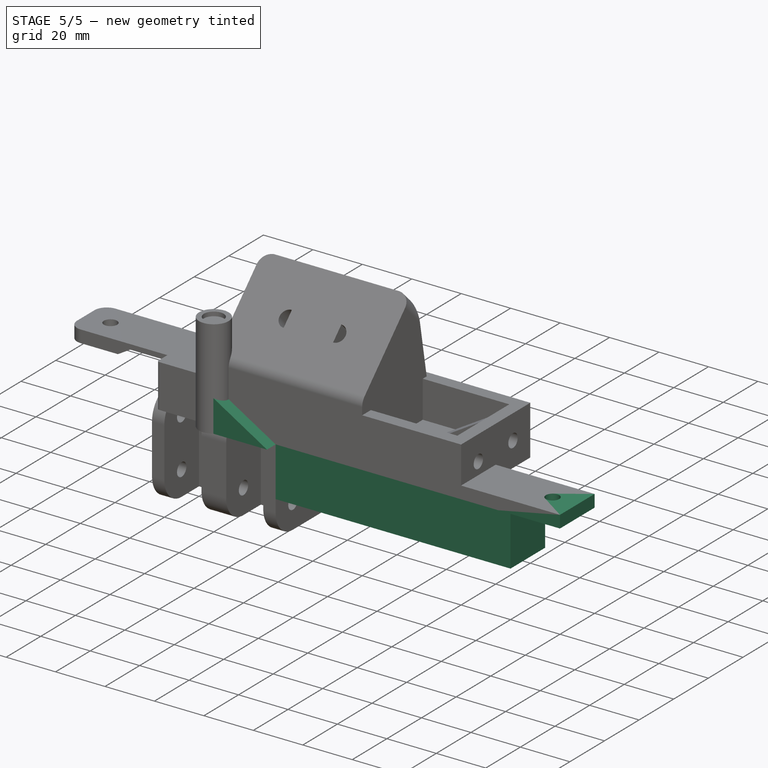
[diagram: stage 5 of 5 — iso view after this stage's code; geometry added in this stage tinted green]
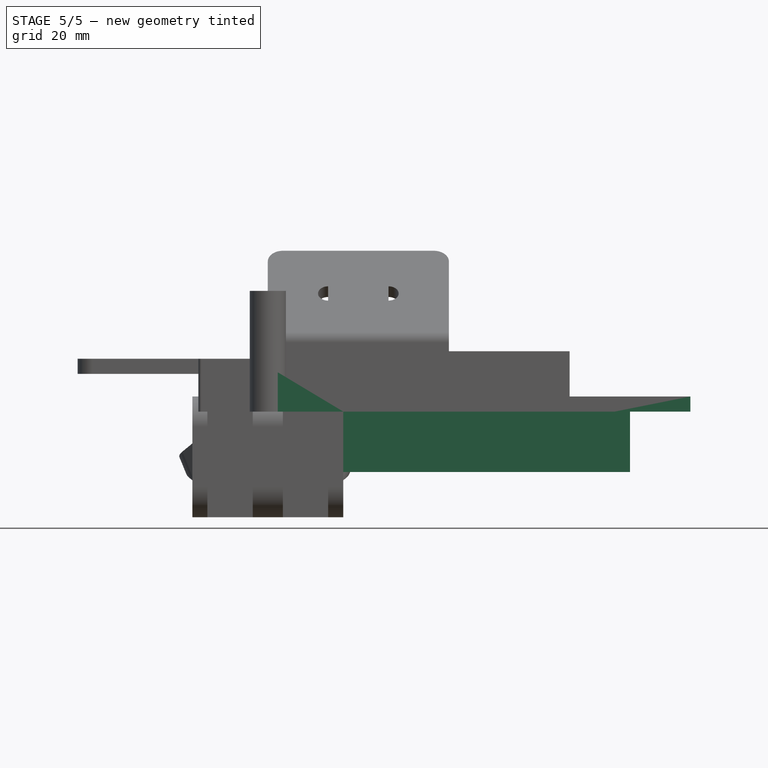
[diagram: stage 5 of 5 — front view after this stage's code; geometry added in this stage tinted green]
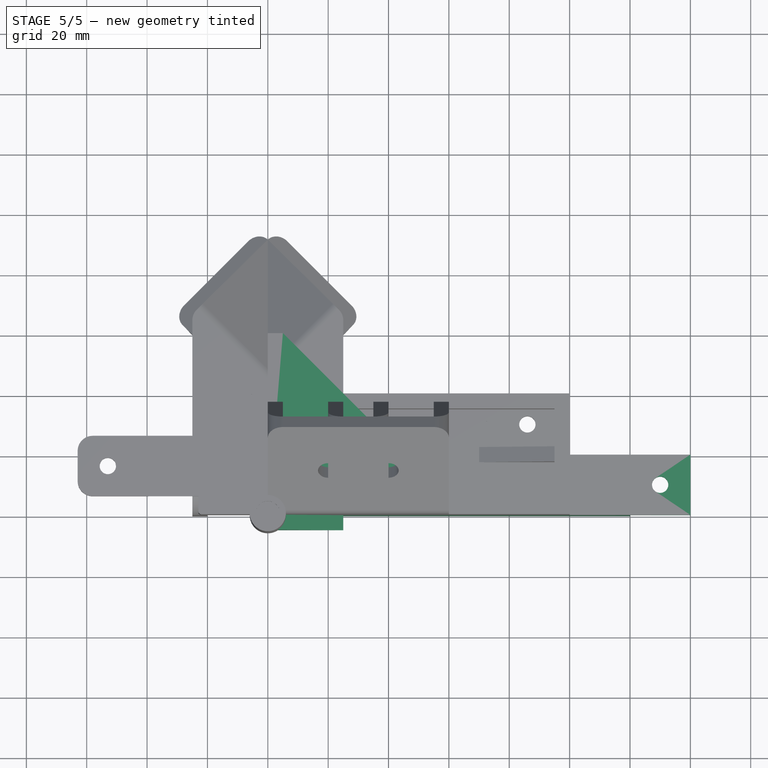
[diagram: stage 5 of 5 — top view after this stage's code; geometry added in this stage tinted green]
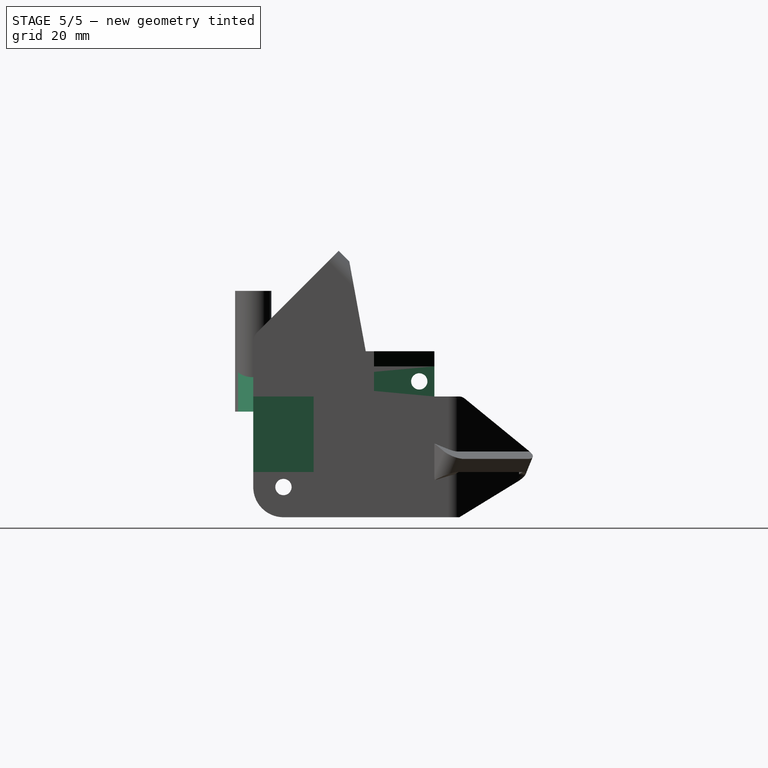
[diagram: stage 5 of 5 — right view after this stage's code; geometry added in this stage tinted green]
FEATURE [Sketcher::SketchObject] Sketch
  FullyConstrained = true
  MapMode = 5
  Support = -> [XY_Plane001]
  sketch-geometry (5):
    g0: LineSegment StartX=0 StartY=0 StartZ=0 EndX=0 EndY=60 EndZ=0
    g1: LineSegment StartX=0 StartY=0 StartZ=0 EndX=60 EndY=0 EndZ=0
    g2: LineSegment StartX=0 StartY=60 StartZ=0 EndX=5 EndY=60 EndZ=0
    g3: LineSegment StartX=60 StartY=0 StartZ=0 EndX=60 EndY=5 EndZ=0
    g4: LineSegment StartX=60 StartY=5 StartZ=0 EndX=5 EndY=60 EndZ=0
  constraints (14):
    c: Coincident(g0,g-1)
    c: PointOnObject(g0,g-2)
    c: Coincident(g1,g0)
    c: PointOnObject(g1,g-1)
    c: Coincident(g2,g0)
    c: Horizontal(g2)
    c: Coincident(g3,g1)
    c: Vertical(g3)
    c: Coincident(g4,g3)
    c: Coincident(g4,g2)
    c: Equal(g0,g1)
    c: Equal(g2,g3)
    c: DistanceX(g1,g1) = 60
    c: DistanceY(g3,g3) = 5
FEATURE [PartDesign::Pad] Pad
  Direction = (0,0,1)
  Length = 5
  Length2 = 10
  Profile = -> Sketch
  ReferenceAxis = -> Sketch [N_Axis]
  Type = 0
FEATURE [Sketcher::SketchObject] Sketch001
  ExternalGeometry = -> [Pad]
  FullyConstrained = true
  MapMode = 5
  Placement = pos=(0,0,5) rot=(0,0,1;0rad)
  Support = -> [Pad]
  sketch-geometry (6):
    g0: LineSegment StartX=0 StartY=60 StartZ=0 EndX=0 EndY=0 EndZ=0
    g1: LineSegment StartX=0 StartY=0 StartZ=0 EndX=60 EndY=0 EndZ=0
    g2: LineSegment StartX=60 StartY=5 StartZ=0 EndX=60 EndY=0 EndZ=0
    g3: LineSegment StartX=0 StartY=60 StartZ=0 EndX=5 EndY=60 EndZ=0
    g4: LineSegment StartX=5 StartY=60 StartZ=0 EndX=5 EndY=5 EndZ=0
    g5: LineSegment StartX=60 StartY=5 StartZ=0 EndX=5 EndY=5 EndZ=0
  constraints (13):
    c: Coincident(g0,g-5)
    c: Coincident(g0,g-4)
    c: Coincident(g1,g0)
    c: Coincident(g1,g-6)
    c: Coincident(g2,g-6)
    c: Coincident(g2,g1)
    c: Coincident(g3,g0)
    c: Coincident(g3,g-5)
    c: Coincident(g4,g3)
    c: Vertical(g4)
    c: Coincident(g5,g2)
    c: Coincident(g5,g4)
    c: Horizontal(g5)
FEATURE [PartDesign::Pad] Pad001
  BaseFeature = -> Pad
  Direction = (0,0,1)
  Length = 10
  Length2 = 10
  Profile = -> Sketch001
  ReferenceAxis = -> Sketch001 [N_Axis]
  Type = 0
FEATURE [Sketcher::SketchObject] Sketch002
  ExternalGeometry = -> [Pad001]
  FullyConstrained = true
  MapMode = 5
  Placement = pos=(0,0,15) rot=(0,0,1;0rad)
  Support = -> [Pad001]
  sketch-geometry (5):
    g0: LineSegment StartX=0 StartY=60 StartZ=0 EndX=0 EndY=0 EndZ=0
    g1: LineSegment StartX=0 StartY=0 StartZ=0 EndX=60 EndY=0 EndZ=0
    g2: LineSegment StartX=60 StartY=0 StartZ=0 EndX=60 EndY=5 EndZ=0
    g3: LineSegment StartX=0 StartY=60 StartZ=0 EndX=5 EndY=60 EndZ=0
    g4: LineSegment StartX=5 StartY=60 StartZ=0 EndX=60 EndY=5 EndZ=0
  constraints (10):
    c: Coincident(g0,g-6)
    c: Coincident(g0,g-4)
    c: Coincident(g1,g0)
    c: Coincident(g1,g-5)
    c: Coincident(g2,g1)
    c: Coincident(g2,g-5)
    c: Coincident(g3,g0)
    c: Coincident(g3,g-6)
    c: Coincident(g4,g3)
    c: Coincident(g4,g2)
FEATURE [PartDesign::Pad] Pad002
  BaseFeature = -> Pad001
  Direction = (0,0,1)
  Length = 5
  Length2 = 10
  Profile = -> Sketch002
  ReferenceAxis = -> Sketch002 [N_Axis]
  Type = 0
FEATURE [PartDesign::Body] Body
  Group = -> [Sketch,Pad,Sketch001,Pad001,Sketch002,Pad002]
  Origin = -> Origin001
  Tip = -> Pad002
FEATURE [App::Part] Part  label="60mm Bracket No Holes"
  Group = -> [Body]
  Origin = -> Origin
FEATURE [Part::Cylinder] Cylinder
  Angle = 360
  AttacherType = Attacher::AttachEngine3D
  FirstAngle = 0
  Height = 5
  Placement = pos=(15,2e-15,10) rot=(-1,0,0;1.5708rad)
  Radius = 2.7
  SecondAngle = 0
FEATURE [Part::Cylinder] Cylinder001
  Angle = 360
  AttacherType = Attacher::AttachEngine3D
  FirstAngle = 0
  Height = 5
  Placement = pos=(55,2e-15,10) rot=(-1,0,0;1.5708rad)
  Radius = 2.7
  SecondAngle = 0
FEATURE [Part::Cylinder] Cylinder002
  Angle = 360
  AttacherType = Attacher::AttachEngine3D
  FirstAngle = 0
  Height = 5
  Placement = pos=(-6e-15,15,10) rot=(0.57735,-0.57735,0.57735;4.18879rad)
  Radius = 2.7
  SecondAngle = 0
FEATURE [Part::Cylinder] Cylinder003
  Angle = 360
  AttacherType = Attacher::AttachEngine3D
  FirstAngle = 0
  Height = 5
  Placement = pos=(-1.2e-14,55,10) rot=(0.57735,-0.57735,0.57735;4.18879rad)
  Radius = 2.7
  SecondAngle = 0
FEATURE [Part::Cylinder] Cylinder004
  Angle = 360
  AttacherType = Attacher::AttachEngine3D
  FirstAngle = 0
  Height = 5
  Placement = pos=(35,2e-15,10) rot=(-1,0,0;1.5708rad)
  Radius = 2.7
  SecondAngle = 0
FEATURE [Part::Cylinder] Cylinder005
  Angle = 360
  AttacherType = Attacher::AttachEngine3D
  FirstAngle = 0
  Height = 5
  Placement = pos=(-6e-15,35,10) rot=(0.57735,-0.57735,0.57735;4.18879rad)
  Radius = 2.7
  SecondAngle = 0
FEATURE [Part::Compound] Compound
  Links = -> [Cylinder,Cylinder001,Cylinder002,Cylinder004,Cylinder003,Cylinder005]
FEATURE [Part::Cut] Cut  label="60mm Bracket"
  Base = -> Body
  Tool = -> Compound
FEATURE [Part::Feature] Cut_solid  label="60mm Bracket (Solid)"
  shape: bbox 60 x 60 x 20 mm, 26 faces (baked)
FEATURE [Sketcher::SketchObject] Sketch026
  FullyConstrained = true
  MapMode = 5
  Support = -> [XY_Plane014]
  sketch-geometry (4):
    g0: LineSegment StartX=0 StartY=0 StartZ=0 EndX=140 EndY=0 EndZ=0
    g1: LineSegment StartX=140 StartY=0 StartZ=0 EndX=140 EndY=20 EndZ=0
    g2: LineSegment StartX=140 StartY=20 StartZ=0 EndX=0 EndY=20 EndZ=0
    g3: LineSegment StartX=0 StartY=20 StartZ=0 EndX=0 EndY=0 EndZ=0
  constraints (11):
    c: Coincident(g0,g1)
    c: Coincident(g1,g2)
    c: Coincident(g2,g3)
    c: Coincident(g3,g0)
    c: Horizontal(g0)
    c: Horizontal(g2)
    c: Vertical(g1)
    c: Vertical(g3)
    c: Coincident(g0,g-1)
    c: DistanceX(g0,g0) = 140
    c: DistanceY(g3,g3) = 20
FEATURE [PartDesign::Pad] Pad024
  Direction = (0,0,1)
  Length = 5
  Length2 = 10
  Profile = -> Sketch026
  ReferenceAxis = -> Sketch026 [N_Axis]
  Type = 0
FEATURE [Sketcher::SketchObject] Sketch027
  ExternalGeometry = -> [Pad024]
  FullyConstrained = true
  MapMode = 5
  Placement = pos=(0,0,0) rot=(1,0,0;3.14159rad)
  Support = -> [Pad024]
  sketch-geometry (18):
    g0: LineSegment StartX=20 StartY=0 StartZ=0 EndX=25 EndY=0 EndZ=0
    g1: LineSegment StartX=25 StartY=0 StartZ=0 EndX=25 EndY=-20 EndZ=0
    g2: LineSegment StartX=25 StartY=-20 StartZ=0 EndX=20 EndY=-20 EndZ=0
    g3: LineSegment StartX=20 StartY=-20 StartZ=0 EndX=20 EndY=0 EndZ=0
    g4: LineSegment StartX=115 StartY=0 StartZ=0 EndX=120 EndY=0 EndZ=0
    g5: LineSegment StartX=120 StartY=0 StartZ=0 EndX=120 EndY=-20 EndZ=0
    g6: LineSegment StartX=120 StartY=-20 StartZ=0 EndX=115 EndY=-20 EndZ=0
    g7: LineSegment StartX=115 StartY=-20 StartZ=0 EndX=115 EndY=0 EndZ=0
    g8: LineSegment StartX=20 StartY=0 StartZ=0 EndX=0 EndY=0 EndZ=0
    g9: LineSegment StartX=120 StartY=0 StartZ=0 EndX=140 EndY=0 EndZ=0
    g10: LineSegment StartX=25 StartY=0 StartZ=0 EndX=115 EndY=0 EndZ=0
    g11: LineSegment StartX=115 StartY=-20 StartZ=0 EndX=25 EndY=-20 EndZ=0
    g12: LineSegment StartX=25 StartY=-5 StartZ=0 EndX=25 EndY=-15 EndZ=0
    g13: LineSegment StartX=115 StartY=-5 StartZ=0 EndX=115 EndY=-15 EndZ=0
    g14: LineSegment StartX=25 StartY=-5 StartZ=0 EndX=115 EndY=-5 EndZ=0
    g15: LineSegment StartX=115 StartY=-15 StartZ=0 EndX=25 EndY=-15 EndZ=0
    g16: LineSegment StartX=25 StartY=-5 StartZ=0 EndX=25 EndY=0 EndZ=0
    g17: LineSegment StartX=25 StartY=-15 StartZ=0 EndX=25 EndY=-20 EndZ=0
  constraints (48):
    c: Coincident(g0,g1)
    c: Coincident(g1,g2)
    c: Coincident(g2,g3)
    c: Coincident(g3,g0)
    c: Horizontal(g0)
    c: Horizontal(g2)
    c: Vertical(g3)
    c: PointOnObject(g0,g-4)
    c: PointOnObject(g1,g-5)
    c: Coincident(g4,g5)
    c: Coincident(g5,g6)
    c: Coincident(g6,g7)
    c: Coincident(g7,g4)
    c: Horizontal(g4)
    c: Horizontal(g6)
    c: Vertical(g5)
    c: Vertical(g7)
    c: PointOnObject(g4,g-4)
    c: PointOnObject(g5,g-5)
    c: Equal(g0,g4)
    c: Coincident(g8,g0)
    c: Coincident(g8,g-4)
    c: Coincident(g9,g4)
    c: Coincident(g9,g-6)
    c: Equal(g8,g9)
    c: DistanceX(g8,g8) = 20
    c: DistanceX(g0,g0) = 5
    c: Coincident(g10,g0)
    c: Coincident(g10,g4)
    c: Coincident(g11,g6)
    c: Coincident(g11,g2)
    c: PointOnObject(g12,g1)
    c: PointOnObject(g12,g1)
    c: PointOnObject(g13,g7)
    c: PointOnObject(g13,g7)
    c: Coincident(g14,g12)
    c: Coincident(g14,g13)
    c: Horizontal(g14)
    c: Coincident(g15,g13)
    c: Coincident(g15,g12)
    c: Horizontal(g15)
    c: Coincident(g16,g12)
    c: Coincident(g16,g0)
    c: Vertical(g16)
    c: Coincident(g17,g12)
    c: Coincident(g17,g2)
    c: Equal(g0,g17)
    c: Equal(g16,g0)
FEATURE [PartDesign::Pad] Pad025
  BaseFeature = -> Pad024
  Direction = (0,0,-1)
  Length = 20
  Length2 = 10
  Profile = -> Sketch027
  ReferenceAxis = -> Sketch027 [N_Axis]
  Type = 0
FEATURE [Sketcher::SketchObject] Sketch028
  ExternalGeometry = -> [Pad025]
  FullyConstrained = true
  MapMode = 5
  Placement = pos=(0,0,0) rot=(1,0,0;3.14159rad)
  Support = -> [Pad025]
  sketch-geometry (8):
    g0: Circle CenterX=10 CenterY=-10 CenterZ=0 NormalX=0 NormalY=0 NormalZ=1 AngleXU=0 Radius=2.7
    g1: Circle CenterX=130 CenterY=-10 CenterZ=0 NormalX=0 NormalY=0 NormalZ=1 AngleXU=0 Radius=2.7
    g2: LineSegment StartX=0 StartY=0 StartZ=0 EndX=10 EndY=-10 EndZ=0
    g3: LineSegment StartX=0 StartY=-20 StartZ=0 EndX=10 EndY=-10 EndZ=0
    g4: LineSegment StartX=130 StartY=-10 StartZ=0 EndX=140 EndY=-20 EndZ=0
    g5: LineSegment StartX=10 StartY=-10 StartZ=0 EndX=20 EndY=0 EndZ=0
    g6: LineSegment StartX=120 StartY=0 StartZ=0 EndX=130 EndY=-10 EndZ=0
    g7: LineSegment StartX=120 StartY=-20 StartZ=0 EndX=130 EndY=-10 EndZ=0
  constraints (18):
    c: Equal(g0,g1)
    c: Diameter(g0) = 5.4
    c: Coincident(g2,g-4)
    c: Coincident(g2,g0)
    c: Coincident(g3,g-4)
    c: Coincident(g3,g0)
    c: Coincident(g4,g1)
    c: Coincident(g4,g-3)
    c: Equal(g2,g3)
    c: Coincident(g5,g0)
    c: Coincident(g5,g-7)
    c: Equal(g2,g5)
    c: Coincident(g6,g-5)
    c: Coincident(g6,g1)
    c: Coincident(g7,g-5)
    c: Coincident(g7,g1)
    c: Equal(g7,g4)
    c: Equal(g6,g7)
FEATURE [PartDesign::Pocket] Pocket002
  BaseFeature = -> Pad025
  Direction = (0,0,1)
  Length = 5
  Length2 = 5
  Profile = -> Sketch028
  ReferenceAxis = -> Sketch028 [N_Axis]
  Type = 1
FEATURE [PartDesign::Body] Body011
  Group = -> [Sketch026,Pad024,Sketch027,Pad025,Sketch028,Pocket002]
  Origin = -> Origin014
  Tip = -> Pocket002
FEATURE [App::Part] Part002  label="10x1cm Connector"
  Group = -> [Body011]
  Origin = -> Origin013
FEATURE [Sketcher::SketchObject] Sketch079
  FullyConstrained = true
  MapMode = 5
  Support = -> [XY_Plane044]
  sketch-geometry (4):
    g0: LineSegment StartX=0 StartY=0 StartZ=0 EndX=0 EndY=40 EndZ=0
    g1: LineSegment StartX=0 StartY=40 StartZ=0 EndX=100 EndY=40 EndZ=0
    g2: LineSegment StartX=100 StartY=40 StartZ=0 EndX=100 EndY=0 EndZ=0
    g3: LineSegment StartX=0 StartY=0 StartZ=0 EndX=100 EndY=0 EndZ=0
  constraints (11):
    c: Coincident(g0,g-1)
    c: PointOnObject(g0,g-2)
    c: Coincident(g1,g0)
    c: Horizontal(g1)
    c: Coincident(g2,g1)
    c: PointOnObject(g2,g-1)
    c: Vertical(g2)
    c: Coincident(g3,g0)
    c: Coincident(g3,g2)
    c: DistanceX(g3,g3) = 100
    c: DistanceY(g2,g2) = 40
FEATURE [PartDesign::Pad] Pad064
  Direction = (0,0,1)
  Length = 5
  Length2 = 10
  Profile = -> Sketch079
  ReferenceAxis = -> Sketch079 [N_Axis]
  Type = 0
FEATURE [Sketcher::SketchObject] Sketch080
  ExternalGeometry = -> [Pad064]
  FullyConstrained = true
  MapMode = 5
  Placement = pos=(0,0,5) rot=(0,0,1;0rad)
  Support = -> [Pad064]
  sketch-geometry (8):
    g0: LineSegment StartX=0 StartY=40 StartZ=0 EndX=0 EndY=0 EndZ=0
    g1: LineSegment StartX=0 StartY=0 StartZ=0 EndX=5 EndY=0 EndZ=0
    g2: LineSegment StartX=5 StartY=0 StartZ=0 EndX=5 EndY=40 EndZ=0
    g3: LineSegment StartX=0 StartY=40 StartZ=0 EndX=5 EndY=40 EndZ=0
    g4: LineSegment StartX=100 StartY=40 StartZ=0 EndX=100 EndY=0 EndZ=0
    g5: LineSegment StartX=100 StartY=0 StartZ=0 EndX=95 EndY=0 EndZ=0
    g6: LineSegment StartX=100 StartY=40 StartZ=0 EndX=95 EndY=40 EndZ=0
    g7: LineSegment StartX=95 StartY=0 StartZ=0 EndX=95 EndY=40 EndZ=0
  constraints (20):
    c: Coincident(g0,g-4)
    c: Coincident(g0,g-4)
    c: Coincident(g1,g0)
    c: PointOnObject(g1,g-1)
    c: Coincident(g2,g1)
    c: Vertical(g2)
    c: Coincident(g3,g0)
    c: Coincident(g3,g2)
    c: Horizontal(g3)
    c: DistanceX(g1,g1) = 5
    c: Coincident(g4,g-3)
    c: Coincident(g4,g-3)
    c: Coincident(g5,g4)
    c: PointOnObject(g5,g-1)
    c: Coincident(g6,g4)
    c: Horizontal(g6)
    c: Coincident(g7,g5)
    c: Coincident(g7,g6)
    c: Vertical(g7)
    c: Equal(g1,g5)
FEATURE [PartDesign::Pad] Pad065
  BaseFeature = -> Pad064
  Direction = (0,0,1)
  Length = 15
  Length2 = 10
  Profile = -> Sketch080
  ReferenceAxis = -> Sketch080 [N_Axis]
  Type = 0
FEATURE [Sketcher::SketchObject] Sketch081
  ExternalGeometry = -> [Pad065]
  FullyConstrained = true
  MapMode = 5
  Placement = pos=(0,0,0) rot=(0.57735,-0.57735,-0.57735;2.0944rad)
  Support = -> [Pad065]
  sketch-geometry (2):
    g0: Circle CenterX=-30 CenterY=10 CenterZ=0 NormalX=0 NormalY=0 NormalZ=1 AngleXU=0 Radius=2.7
    g1: Circle CenterX=-10 CenterY=10 CenterZ=0 NormalX=0 NormalY=0 NormalZ=1 AngleXU=0 Radius=2.7
  constraints (6):
    c: Diameter(g0) = 5.4
    c: Diameter(g1) = 5.4
    c: DistanceY(g-3,g1) = 10
    c: DistanceX(g1,g-3) = 10
    c: DistanceX(g0,g1) = 20
    c: Horizontal(g0,g1)
FEATURE [PartDesign::Pocket] Pocket019
  BaseFeature = -> Pad065
  Direction = (1,0,0)
  Length = 5
  Length2 = 5
  Profile = -> Sketch081
  ReferenceAxis = -> Sketch081 [N_Axis]
  Type = 1
FEATURE [Sketcher::SketchObject] Sketch082
  FullyConstrained = true
  MapMode = 5
  Placement = pos=(0,0,5) rot=(0,0,1;0rad)
  Support = -> [Pocket019]
  sketch-geometry (6):
    g0: Circle CenterX=14 CenterY=30 CenterZ=0 NormalX=0 NormalY=0 NormalZ=1 AngleXU=0 Radius=2.7
    g1: Circle CenterX=14 CenterY=10 CenterZ=0 NormalX=0 NormalY=0 NormalZ=1 AngleXU=0 Radius=2.7
    g2: Circle CenterX=86 CenterY=30 CenterZ=0 NormalX=0 NormalY=0 NormalZ=1 AngleXU=0 Radius=2.7
    g3: Circle CenterX=86 CenterY=10 CenterZ=0 NormalX=0 NormalY=0 NormalZ=1 AngleXU=0 Radius=2.7
    g4: Circle CenterX=50 CenterY=30 CenterZ=0 NormalX=0 NormalY=0 NormalZ=1 AngleXU=0 Radius=2.7
    g5: Circle CenterX=50 CenterY=10 CenterZ=0 NormalX=0 NormalY=0 NormalZ=1 AngleXU=0 Radius=2.7
  constraints (18):
    c: Equal(g1,g0)
    c: Equal(g1,g4)
    c: Equal(g1,g5)
    c: Equal(g1,g3)
    c: Equal(g1,g2)
    c: Diameter(g1) = 5.4
    c: DistanceY(g-1,g1) = 10
    c: DistanceX(g-1,g1) = 14
    c: DistanceX(g0,g4) = 36
    c: DistanceX(g4,g2) = 36
    c: DistanceY(g1,g0) = 20
    c: Horizontal(g5,g1)
    c: Horizontal(g5,g3)
    c: Horizontal(g0,g4)
    c: Horizontal(g4,g2)
    c: Vertical(g1,g0)
    c: Vertical(g4,g5)
    c: Vertical(g3,g2)
FEATURE [PartDesign::Pocket] Pocket020
  BaseFeature = -> Pocket019
  Direction = (0,0,-1)
  Length = 5
  Length2 = 5
  Profile = -> Sketch082
  ReferenceAxis = -> Sketch082 [N_Axis]
  Type = 2
FEATURE [Sketcher::SketchObject] Sketch087
  FullyConstrained = true
  MapMode = 5
  Placement = pos=(0,0,0) rot=(1,0,0;1.5708rad)
  Support = -> [XZ_Plane049]
  sketch-geometry (3):
    g0: LineSegment StartX=0 StartY=15 StartZ=0 EndX=0 EndY=0 EndZ=0
    g1: LineSegment StartX=0 StartY=0 StartZ=0 EndX=25 EndY=0 EndZ=0
    g2: LineSegment StartX=0 StartY=15 StartZ=0 EndX=25 EndY=0 EndZ=0
  constraints (8):
    c: Vertical(g0)
    c: Coincident(g1,g0)
    c: Horizontal(g1)
    c: Coincident(g2,g0)
    c: Coincident(g2,g1)
    c: DistanceX(g1,g1) = 25
    c: DistanceY(g0,g0) = 15
    c: Coincident(g-1,g0)
FEATURE [PartDesign::Pad] Pad070
  Direction = (0,-1,2e-16)
  Length = 5
  Length2 = 10
  Placement = pos=(0,0,0) rot=(1,0,0;1.5708rad)
  Profile = -> Sketch087
  ReferenceAxis = -> Sketch087 [N_Axis]
  Type = 0
FEATURE [PartDesign::Body] Body039  label="Reinforcement016"
  Group = -> [Sketch087,Pad070]
  Origin = -> Origin049
  Placement = pos=(95,17.5,5) rot=(0,0,1;3.14159rad)
  Tip = -> Pad070
FEATURE [Sketcher::SketchObject] Sketch088
  FullyConstrained = true
  MapMode = 5
  Placement = pos=(0,0,0) rot=(1,0,0;1.5708rad)
  Support = -> [XZ_Plane050]
  sketch-geometry (3):
    g0: LineSegment StartX=0 StartY=15 StartZ=0 EndX=0 EndY=0 EndZ=0
    g1: LineSegment StartX=0 StartY=0 StartZ=0 EndX=25 EndY=0 EndZ=0
    g2: LineSegment StartX=0 StartY=15 StartZ=0 EndX=25 EndY=0 EndZ=0
  constraints (8):
    c: Vertical(g0)
    c: Coincident(g1,g0)
    c: Horizontal(g1)
    c: Coincident(g2,g0)
    c: Coincident(g2,g1)
    c: DistanceX(g1,g1) = 25
    c: DistanceY(g0,g0) = 15
    c: Coincident(g-1,g0)
FEATURE [PartDesign::Pad] Pad071
  Direction = (0,-1,2e-16)
  Length = 5
  Length2 = 10
  Placement = pos=(0,0,0) rot=(1,0,0;1.5708rad)
  Profile = -> Sketch088
  ReferenceAxis = -> Sketch088 [N_Axis]
  Type = 0
FEATURE [PartDesign::Body] Body040  label="Reinforcement017"
  Group = -> [Sketch088,Pad071]
  Origin = -> Origin050
  Placement = pos=(5,22.5,5) rot=(0,0,1;0rad)
  Tip = -> Pad071
FEATURE [Sketcher::SketchObject] Sketch089
  ExternalGeometry = -> [Pocket020]
  FullyConstrained = true
  MapMode = 5
  Placement = pos=(0,0,5) rot=(0,0,1;0rad)
  Support = -> [Pocket020]
  sketch-geometry (8):
    g0: LineSegment StartX=5 StartY=40 StartZ=0 EndX=95 EndY=40 EndZ=0
    g1: LineSegment StartX=95 StartY=40 StartZ=0 EndX=95 EndY=35 EndZ=0
    g2: LineSegment StartX=95 StartY=35 StartZ=0 EndX=5 EndY=35 EndZ=0
    g3: LineSegment StartX=5 StartY=35 StartZ=0 EndX=5 EndY=40 EndZ=0
    g4: LineSegment StartX=5 StartY=0 StartZ=0 EndX=95 EndY=0 EndZ=0
    g5: LineSegment StartX=95 StartY=0 StartZ=0 EndX=95 EndY=5 EndZ=0
    g6: LineSegment StartX=95 StartY=5 StartZ=0 EndX=5 EndY=5 EndZ=0
    g7: LineSegment StartX=5 StartY=5 StartZ=0 EndX=5 EndY=0 EndZ=0
  constraints (22):
    c: Coincident(g0,g1)
    c: Coincident(g1,g2)
    c: Coincident(g2,g3)
    c: Coincident(g3,g0)
    c: Horizontal(g0)
    c: Horizontal(g2)
    c: Vertical(g1)
    c: Vertical(g3)
    c: Coincident(g0,g-3)
    c: PointOnObject(g1,g-4)
    c: Coincident(g4,g5)
    c: Coincident(g5,g6)
    c: Coincident(g6,g7)
    c: Coincident(g7,g4)
    c: Horizontal(g4)
    c: Horizontal(g6)
    c: Vertical(g5)
    c: Vertical(g7)
    c: Coincident(g4,g-3)
    c: PointOnObject(g5,g-4)
    c: DistanceY(g7,g7) = 5
    c: DistanceY(g3,g3) = 5
FEATURE [PartDesign::Pad] Pad072
  BaseFeature = -> Pocket020
  Direction = (0,0,1)
  Length = 15
  Length2 = 10
  Profile = -> Sketch089
  ReferenceAxis = -> Sketch089 [N_Axis]
  Type = 0
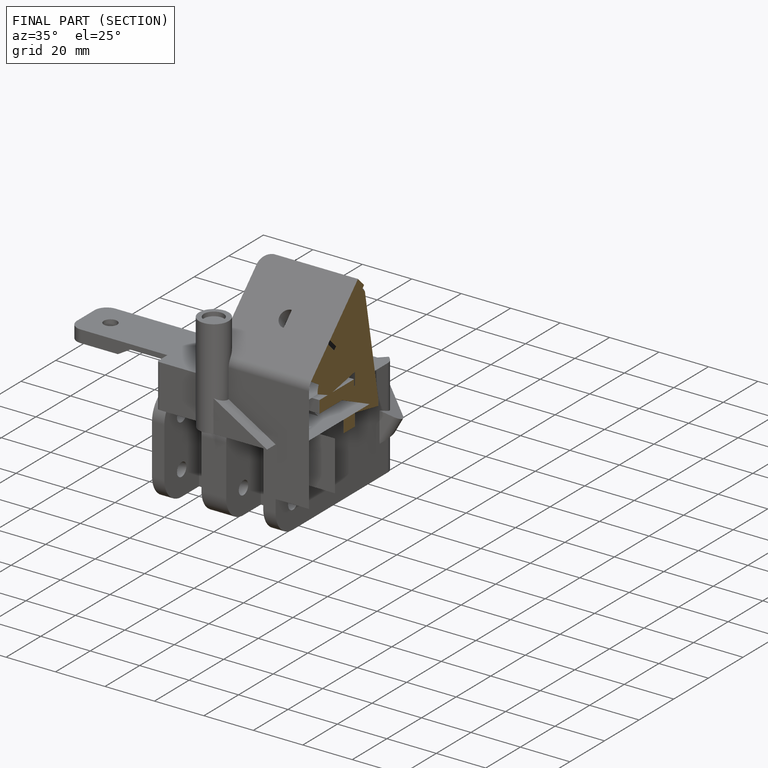
[diagram: finished part — half-section view (interior)]
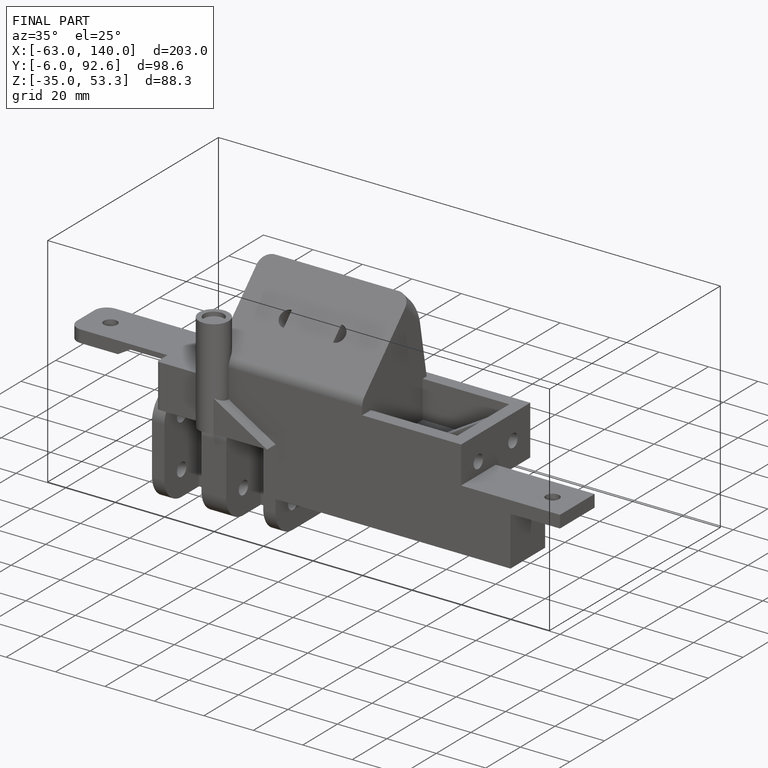
[diagram: finished part — iso view with bounding-box wireframe]
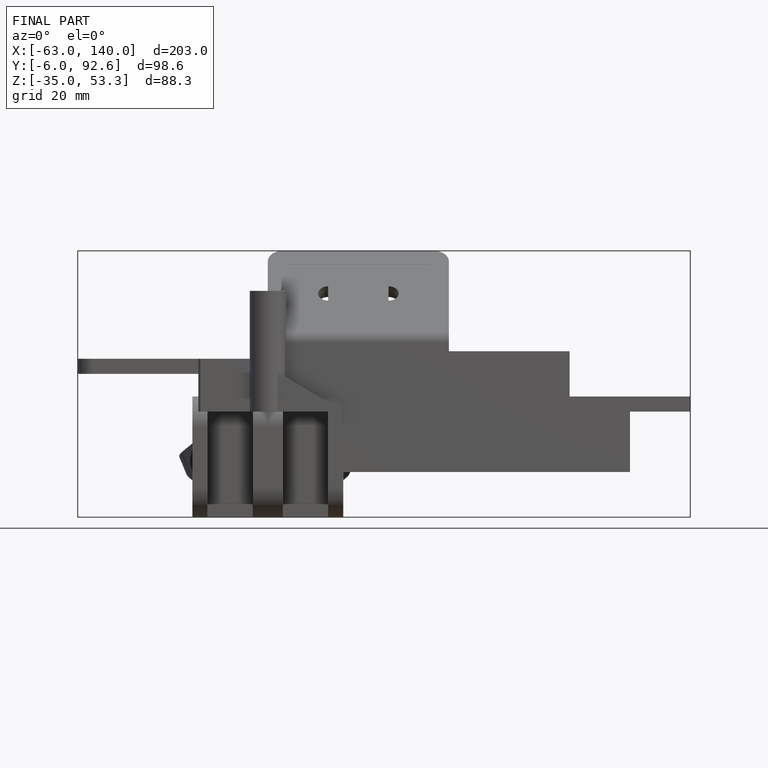
[diagram: finished part — front view with bounding-box wireframe]
